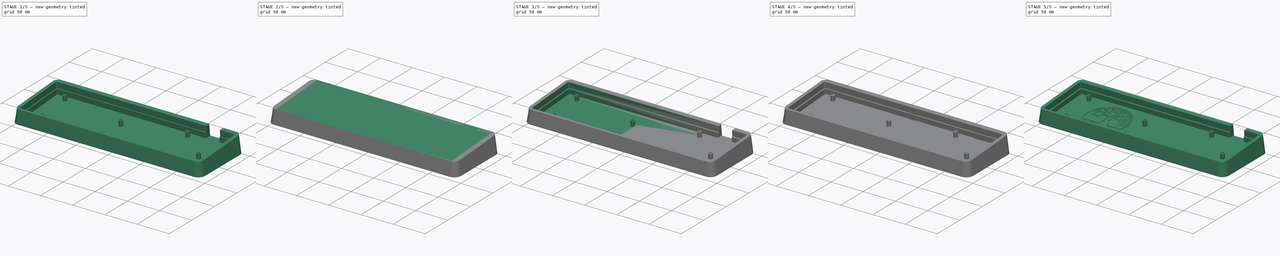
[diagram: build sequence overview — one tinted view per stage of 5, left to right]
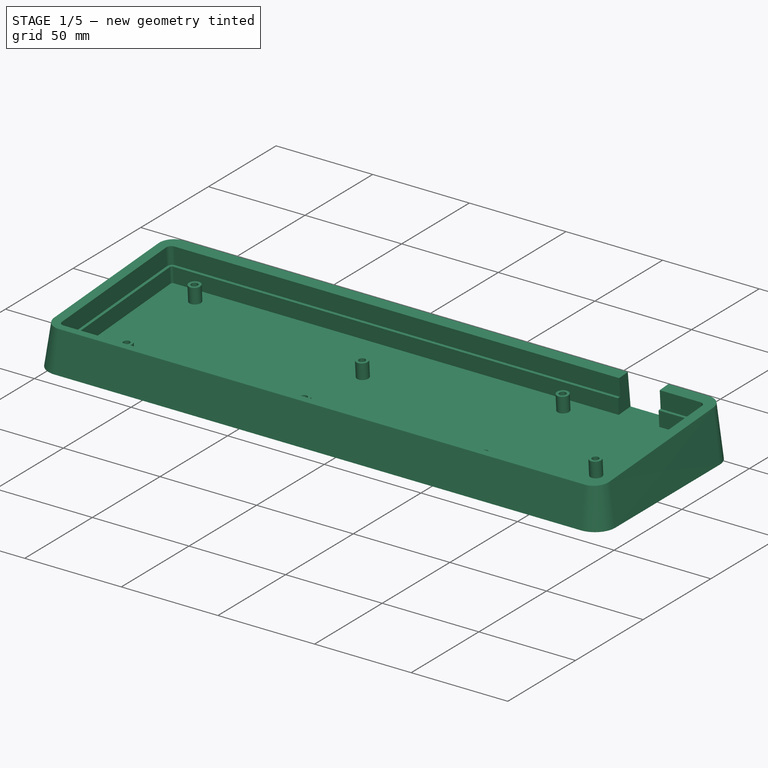
[diagram: stage 1 of 5 — iso view after this stage's code; geometry added in this stage tinted green]
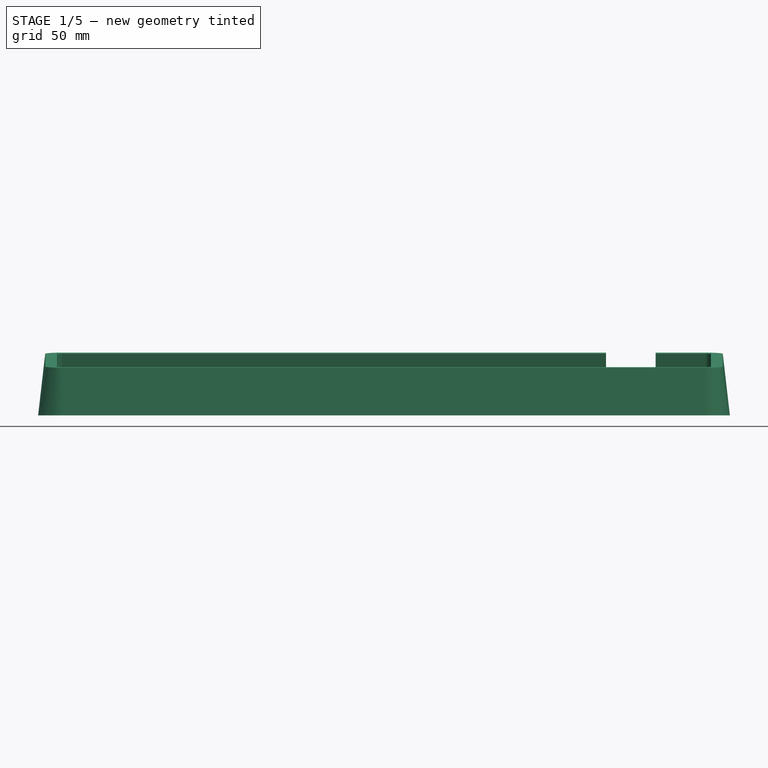
[diagram: stage 1 of 5 — front view after this stage's code; geometry added in this stage tinted green]
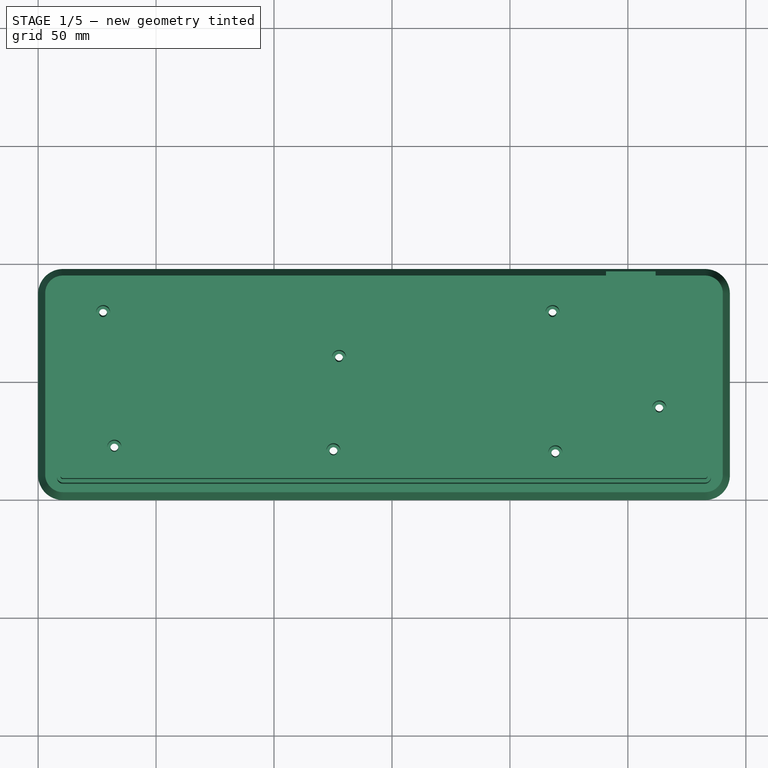
[diagram: stage 1 of 5 — top view after this stage's code; geometry added in this stage tinted green]
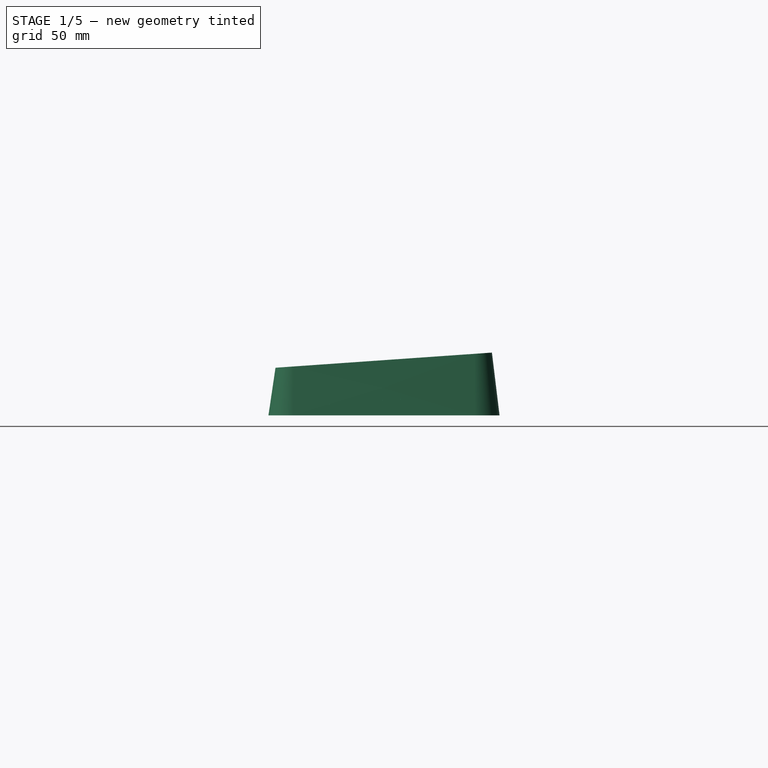
[diagram: stage 1 of 5 — right view after this stage's code; geometry added in this stage tinted green]
FCSTD DOCUMENT  (FreeCAD 0.20R)
Label: case
License: All rights reserved
LicenseURL: http://en.wikipedia.org/wiki/All_rights_reserved
objects: Sketcher::SketchObject×23, PartDesign::Pocket×11, PartDesign::Fillet×8, PartDesign::AdditiveLoft×3, PartDesign::Pad×3, PartDesign::Hole×3, PartDesign::Chamfer×3, PartDesign::Body×3
note: 88 computed .brp shape members not serialized (recipe doc carries the construction recipe); baked Part::Feature solids carry a one-line shape summary decoded from their .brp

FEATURE [PartDesign::Body] Body001  label="Left"
  Group = -> [Sketch011,Sketch009,Sketch010,AdditiveLoft001,Pocket003,Sketch012,Pad001,Sketch013,Hole001,Chamfer001,Sketch014,Pocket004,Fillet002,Fillet003,Sketch015,Pocket005,Sketch016,Pocket006,Fillet004]
  Origin = -> Origin098
  Tip = -> Fillet004
FEATURE [Sketcher::SketchObject] Sketch018
  AttachmentOffset = pos=(0,0,20) rot=(1,0,0;0.069813rad)
  FullyConstrained = false
  MapMode = 5
  Placement = pos=(0,0,20) rot=(1,0,0;0.069813rad)
  Support = -> [XY_Plane099]
  sketch-geometry (8):
    g0: LineSegment StartX=10.5 StartY=94.9625 StartZ=0 EndX=282.725 EndY=94.9625 EndZ=0
    g1: LineSegment StartX=290.225 StartY=10.5 StartZ=0 EndX=290.225 EndY=87.4625 EndZ=0
    g2: LineSegment StartX=10.5 StartY=3 StartZ=0 EndX=282.725 EndY=3 EndZ=0
    g3: LineSegment StartX=3 StartY=10.5 StartZ=0 EndX=3 EndY=87.4625 EndZ=0
    g4: ArcOfCircle CenterX=10.5 CenterY=87.4625 CenterZ=0 NormalX=0 NormalY=0 NormalZ=1 AngleXU=0 Radius=7.5 StartAngle=1.5708 EndAngle=3.14159
    g5: ArcOfCircle CenterX=282.725 CenterY=87.4625 CenterZ=0 NormalX=0 NormalY=0 NormalZ=1 AngleXU=0 Radius=7.5 StartAngle=0 EndAngle=1.5708
    g6: ArcOfCircle CenterX=282.725 CenterY=10.5 CenterZ=0 NormalX=0 NormalY=0 NormalZ=1 AngleXU=0 Radius=7.5 StartAngle=4.71239 EndAngle=6.28319
    g7: ArcOfCircle CenterX=10.5 CenterY=10.5 CenterZ=0 NormalX=0 NormalY=0 NormalZ=1 AngleXU=0 Radius=7.5 StartAngle=3.14159 EndAngle=4.71239
  constraints (8):
    c: Coincident(g3,g7)
    c: Coincident(g3,g4)
    c: Coincident(g2,g7)
    c: Coincident(g0,g4)
    c: Coincident(g2,g6)
    c: Coincident(g0,g5)
    c: Coincident(g1,g6)
    c: Coincident(g1,g5)
FEATURE [Sketcher::SketchObject] Sketch019
  FullyConstrained = false
  MapMode = 5
  Support = -> [XY_Plane099]
  sketch-geometry (8):
    g0: LineSegment StartX=10.5 StartY=97.9625 StartZ=0 EndX=282.725 EndY=97.9625 EndZ=0
    g1: ArcOfCircle CenterX=282.725 CenterY=87.4625 CenterZ=0 NormalX=0 NormalY=0 NormalZ=1 AngleXU=0 Radius=10.5 StartAngle=0 EndAngle=1.5708
    g2: LineSegment StartX=293.225 StartY=10.5 StartZ=0 EndX=293.225 EndY=87.4625 EndZ=0
    g3: ArcOfCircle CenterX=282.725 CenterY=10.5 CenterZ=0 NormalX=0 NormalY=0 NormalZ=1 AngleXU=0 Radius=10.5 StartAngle=4.71239 EndAngle=6.28319
    g4: LineSegment StartX=10.5 StartY=0 StartZ=0 EndX=282.725 EndY=0 EndZ=0
    g5: ArcOfCircle CenterX=10.5 CenterY=10.5 CenterZ=0 NormalX=0 NormalY=0 NormalZ=1 AngleXU=0 Radius=10.5 StartAngle=3.14159 EndAngle=4.71239
    g6: LineSegment StartX=0 StartY=10.5 StartZ=0 EndX=0 EndY=87.4625 EndZ=0
    g7: ArcOfCircle CenterX=10.5 CenterY=87.4625 CenterZ=0 NormalX=0 NormalY=0 NormalZ=1 AngleXU=0 Radius=10.5 StartAngle=1.5708 EndAngle=3.14159
  constraints (8):
    c: Coincident(g5,g6)
    c: Coincident(g6,g7)
    c: Coincident(g4,g5)
    c: Coincident(g0,g7)
    c: Coincident(g3,g4)
    c: Coincident(g0,g1)
    c: Coincident(g2,g3)
    c: Coincident(g1,g2)
FEATURE [PartDesign::AdditiveLoft] AdditiveLoft002
  Closed = true
  Profile = -> Sketch019
  Ruled = true
  Sections = -> [Sketch018]
FEATURE [Sketcher::SketchObject] Sketch017
  FullyConstrained = false
  MapMode = 5
  Placement = pos=(0,-1.39173,19.9027) rot=(1,0,0;0.069813rad)
  Support = -> [AdditiveLoft002]
  sketch-geometry (8):
    g0: LineSegment StartX=285.225 StartY=10.5 StartZ=0 EndX=285.225 EndY=87.4625 EndZ=0
    g1: ArcOfCircle CenterX=10.5 CenterY=87.4625 CenterZ=0 NormalX=0 NormalY=0 NormalZ=1 AngleXU=0 Radius=2.5 StartAngle=1.5708 EndAngle=3.14159
    g2: ArcOfCircle CenterX=282.725 CenterY=87.4625 CenterZ=0 NormalX=0 NormalY=0 NormalZ=1 AngleXU=0 Radius=2.5 StartAngle=0 EndAngle=1.5708
    g3: LineSegment StartX=10.5 StartY=89.9625 StartZ=0 EndX=282.725 EndY=89.9625 EndZ=0
    g4: ArcOfCircle CenterX=10.5 CenterY=10.5 CenterZ=0 NormalX=0 NormalY=0 NormalZ=1 AngleXU=0 Radius=2.5 StartAngle=3.14159 EndAngle=4.71239
    g5: ArcOfCircle CenterX=282.725 CenterY=10.5 CenterZ=0 NormalX=0 NormalY=0 NormalZ=1 AngleXU=0 Radius=2.5 StartAngle=4.71239 EndAngle=6.28319
    g6: LineSegment StartX=8 StartY=10.5 StartZ=0 EndX=8 EndY=87.4625 EndZ=0
    g7: LineSegment StartX=10.5 StartY=8 StartZ=0 EndX=282.725 EndY=8 EndZ=0
  constraints (8):
    c: Coincident(g4,g6)
    c: Coincident(g1,g6)
    c: Coincident(g4,g7)
    c: Coincident(g1,g3)
    c: Coincident(g5,g7)
    c: Coincident(g2,g3)
    c: Coincident(g0,g5)
    c: Coincident(g0,g2)
FEATURE [PartDesign::Pocket] Pocket007
  BaseFeature = -> AdditiveLoft002
  Direction = (0,0.0697565,-0.997564)
  Length = 17
  Length2 = 5
  Profile = -> Sketch017
  ReferenceAxis = -> Sketch017 [N_Axis]
  Type = 0
FEATURE [Sketcher::SketchObject] Sketch020
  FullyConstrained = false
  MapMode = 5
  Placement = pos=(0,-0.205871,2.94409) rot=(1,0,0;0.069813rad)
  Support = -> [Pocket007]
  sketch-geometry (23):
    g0: LineSegment StartX=10.5 StartY=88.4625 StartZ=0 EndX=282.725 EndY=88.4625 EndZ=0
    g1: LineSegment StartX=9.5 StartY=10.5 StartZ=0 EndX=9.5 EndY=87.4625 EndZ=0
    g2: ArcOfCircle CenterX=10.5 CenterY=10.5 CenterZ=0 NormalX=0 NormalY=0 NormalZ=1 AngleXU=0 Radius=1 StartAngle=3.14159 EndAngle=4.71239
    g3: ArcOfCircle CenterX=10.5 CenterY=87.4625 CenterZ=0 NormalX=0 NormalY=0 NormalZ=1 AngleXU=0 Radius=1 StartAngle=1.5708 EndAngle=3.14159
    g4: LineSegment StartX=283.725 StartY=10.5 StartZ=0 EndX=283.725 EndY=87.4625 EndZ=0
    g5: ArcOfCircle CenterX=282.725 CenterY=10.5 CenterZ=0 NormalX=0 NormalY=0 NormalZ=1 AngleXU=0 Radius=1 StartAngle=4.71239 EndAngle=6.28319
    g6: ArcOfCircle CenterX=282.725 CenterY=87.4625 CenterZ=0 NormalX=0 NormalY=0 NormalZ=1 AngleXU=0 Radius=1 StartAngle=0 EndAngle=1.5708
    g7: Circle CenterX=218.05 CenterY=79.9375 CenterZ=0 NormalX=0 NormalY=0 NormalZ=-1 AngleXU=0 Radius=3
    g8: Circle CenterX=219.241 CenterY=20.4063 CenterZ=0 NormalX=0 NormalY=0 NormalZ=-1 AngleXU=0 Radius=3
    g9: LineSegment StartX=10.5 StartY=9.5 StartZ=0 EndX=282.725 EndY=9.5 EndZ=0
    g10: Circle CenterX=125.181 CenterY=21.2875 CenterZ=0 NormalX=0 NormalY=0 NormalZ=-1 AngleXU=0 Radius=3
    g11: Circle CenterX=263.294 CenterY=39.4562 CenterZ=0 NormalX=0 NormalY=0 NormalZ=-1 AngleXU=0 Radius=3
    g12: Circle CenterX=27.55 CenterY=79.9375 CenterZ=0 NormalX=0 NormalY=0 NormalZ=-1 AngleXU=0 Radius=3
    g13: Circle CenterX=32.3125 CenterY=22.7875 CenterZ=0 NormalX=0 NormalY=0 NormalZ=-1 AngleXU=0 Radius=3
    g14: Circle CenterX=127.562 CenterY=60.8875 CenterZ=0 NormalX=0 NormalY=0 NormalZ=-1 AngleXU=0 Radius=3
    g15: LineSegment StartX=10.5 StartY=8 StartZ=0 EndX=282.725 EndY=8 EndZ=0
    g16: LineSegment StartX=8 StartY=10.5 StartZ=0 EndX=8 EndY=87.4625 EndZ=0
    g17: ArcOfCircle CenterX=282.725 CenterY=10.5 CenterZ=0 NormalX=0 NormalY=0 NormalZ=1 AngleXU=0 Radius=2.5 StartAngle=4.71239 EndAngle=6.28319
    g18: ArcOfCircle CenterX=10.5 CenterY=10.5 CenterZ=0 NormalX=0 NormalY=0 NormalZ=1 AngleXU=0 Radius=2.5 StartAngle=3.14159 EndAngle=4.71239
    g19: LineSegment StartX=10.5 StartY=89.9625 StartZ=0 EndX=282.725 EndY=89.9625 EndZ=0
    g20: ArcOfCircle CenterX=282.725 CenterY=87.4625 CenterZ=0 NormalX=0 NormalY=0 NormalZ=1 AngleXU=0 Radius=2.5 StartAngle=0 EndAngle=1.5708
    g21: ArcOfCircle CenterX=10.5 CenterY=87.4625 CenterZ=0 NormalX=0 NormalY=0 NormalZ=1 AngleXU=0 Radius=2.5 StartAngle=1.5708 EndAngle=3.14159
    g22: LineSegment StartX=285.225 StartY=10.5 StartZ=0 EndX=285.225 EndY=87.4625 EndZ=0
FEATURE [PartDesign::Pad] Pad002
  BaseFeature = -> Pocket007
  Direction = (0,-0.0697565,0.997564)
  Length = 8
  Length2 = 10
  Profile = -> Sketch020
  ReferenceAxis = -> Sketch020 [N_Axis]
  Type = 0
FEATURE [Sketcher::SketchObject] Sketch021
  ExternalGeometry = -> [Pad002]
  FullyConstrained = true
  MapMode = 5
  Placement = pos=(-1e-16,-0.763923,10.9246) rot=(1,0,0;0.069813rad)
  Support = -> [Pad002]
  sketch-geometry (7):
    g0: Circle CenterX=218.05 CenterY=79.9375 CenterZ=0 NormalX=0 NormalY=0 NormalZ=1 AngleXU=0 Radius=1.5
    g1: Circle CenterX=263.294 CenterY=39.4563 CenterZ=0 NormalX=0 NormalY=0 NormalZ=1 AngleXU=0 Radius=1.5
    g2: Circle CenterX=219.241 CenterY=20.4063 CenterZ=0 NormalX=0 NormalY=0 NormalZ=1 AngleXU=0 Radius=1.5
    g3: Circle CenterX=127.562 CenterY=60.8875 CenterZ=0 NormalX=0 NormalY=0 NormalZ=1 AngleXU=0 Radius=1.5
    g4: Circle CenterX=125.181 CenterY=21.2875 CenterZ=0 NormalX=0 NormalY=0 NormalZ=1 AngleXU=0 Radius=1.5
    g5: Circle CenterX=32.3125 CenterY=22.7875 CenterZ=0 NormalX=0 NormalY=0 NormalZ=1 AngleXU=0 Radius=1.5
    g6: Circle CenterX=27.55 CenterY=79.9375 CenterZ=0 NormalX=0 NormalY=0 NormalZ=1 AngleXU=0 Radius=1.5
  constraints (14):
    c: Coincident(g0,g-7)
    c: Coincident(g1,g-8)
    c: Coincident(g2,g-9)
    c: Coincident(g3,g-6)
    c: Coincident(g4,g-5)
    c: Coincident(g5,g-4)
    c: Coincident(g6,g-3)
    c: Equal(g6,g5)
    c: Equal(g5,g3)
    c: Equal(g3,g4)
    c: Equal(g4,g0)
    c: Equal(g0,g2)
    c: Equal(g2,g1)
    c: Diameter(g6) = 3
FEATURE [PartDesign::Hole] Hole002
  BaseFeature = -> Pad002
  CustomThreadClearance = 0
  Depth = 25
  DepthType = 0
  Diameter = 3.4
  DrillForDepth = false
  DrillPoint = 1
  DrillPointAngle = 118
  HoleCutCountersinkAngle = 90
  HoleCutCustomValues = false
  HoleCutDepth = 0
  HoleCutDiameter = 6.1
  HoleCutType = 0
  ModelThread = false
  Profile = -> Sketch021
  Tapered = false
  TaperedAngle = 90
  ThreadClass = 0
  ThreadDepth = 25
  ThreadDepthType = 0
  ThreadDirection = 0
  ThreadFit = 0
  ThreadSize = 9
  ThreadType = 1
  Threaded = false
  UseCustomThreadClearance = false
FEATURE [PartDesign::Chamfer] Chamfer002
  Angle = 45
  Base = -> Hole002 [Edge11,Edge10,Edge13,Edge15,Edge12,Edge9,Edge14]
  BaseFeature = -> Hole002
  ChamferType = 0
  FlipDirection = false
  Size = 4
  Size2 = 1
  SupportTransform = false
  UseAllEdges = false
FEATURE [Sketcher::SketchObject] Sketch022
  ExternalGeometry = -> [Chamfer002]
  FullyConstrained = true
  MapMode = 5
  Placement = pos=(0,-1.39173,19.9027) rot=(1,0,0;0.069813rad)
  Support = -> [Chamfer002]
  sketch-geometry (5):
    g0: GeomPoint X=261.725 Y=88.4625 Z=0
    g1: LineSegment StartX=261.725 StartY=88.4625 StartZ=0 EndX=240.725 EndY=88.4625 EndZ=0
    g2: LineSegment StartX=240.725 StartY=88.4625 StartZ=0 EndX=240.725 EndY=97.7239 EndZ=0
    g3: LineSegment StartX=240.725 StartY=97.7239 StartZ=0 EndX=261.725 EndY=97.7239 EndZ=0
    g4: LineSegment StartX=261.725 StartY=97.7239 StartZ=0 EndX=261.725 EndY=88.4625 EndZ=0
  constraints (13):
    c: PointOnObject(g0,g-4)
    c: DistanceX(g0,g-4) = 21
    c: Coincident(g1,g2)
    c: Coincident(g2,g3)
    c: Coincident(g3,g4)
    c: Coincident(g4,g1)
    c: Horizontal(g1)
    c: Horizontal(g3)
    c: Vertical(g2)
    c: Vertical(g4)
    c: Coincident(g1,g0)
    c: PointOnObject(g2,g-3)
    c: DistanceX(g3,g3) = 21
FEATURE [PartDesign::Pocket] Pocket008
  BaseFeature = -> Chamfer002
  Direction = (0,0.0697565,-0.997564)
  Length = 0
  Length2 = 5
  Profile = -> Sketch022
  ReferenceAxis = -> Sketch022 [N_Axis]
  Type = 3
  UpToFace = -> Chamfer002 [Face48]
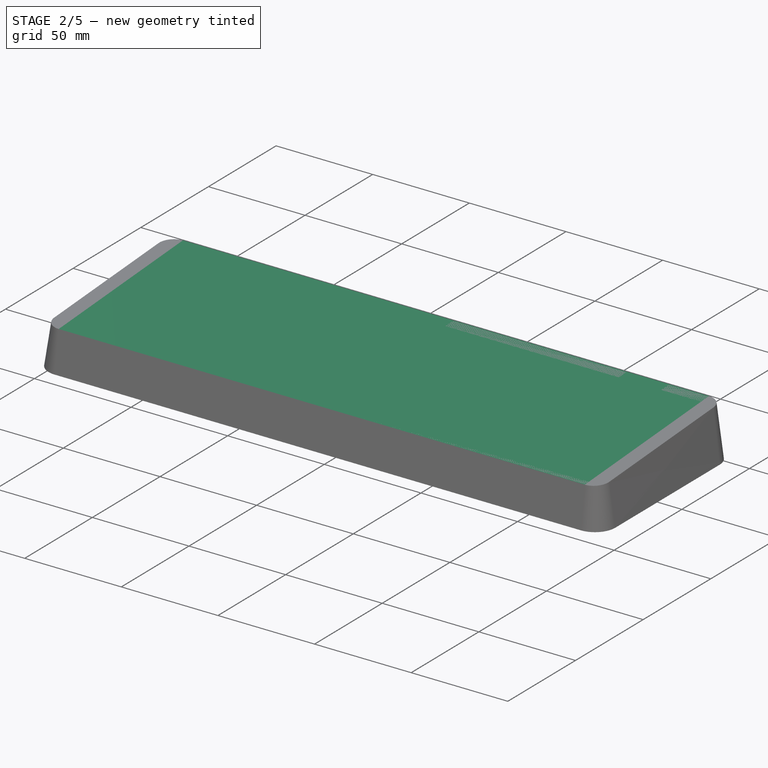
[diagram: stage 2 of 5 — iso view after this stage's code; geometry added in this stage tinted green]
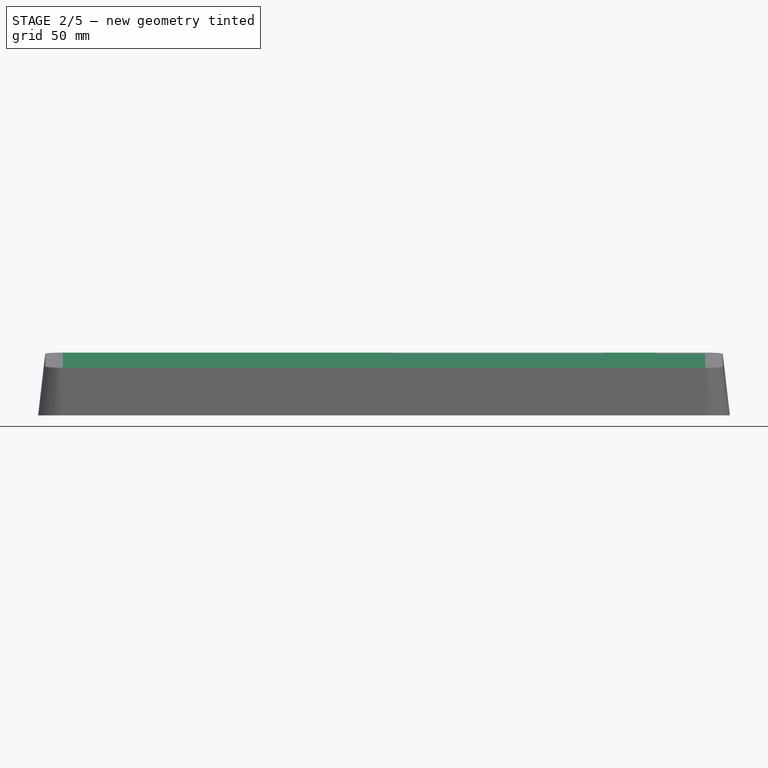
[diagram: stage 2 of 5 — front view after this stage's code; geometry added in this stage tinted green]
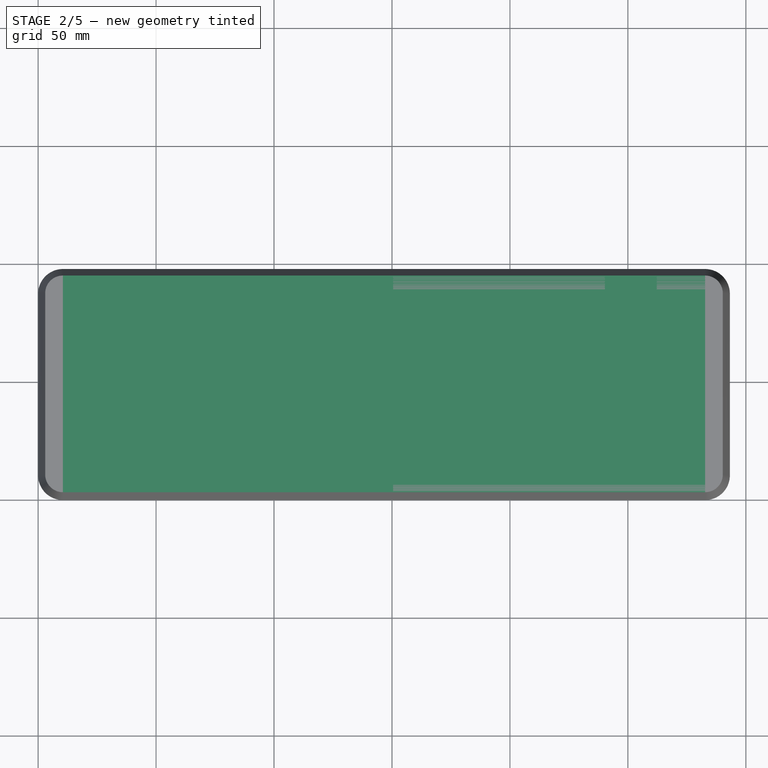
[diagram: stage 2 of 5 — top view after this stage's code; geometry added in this stage tinted green]
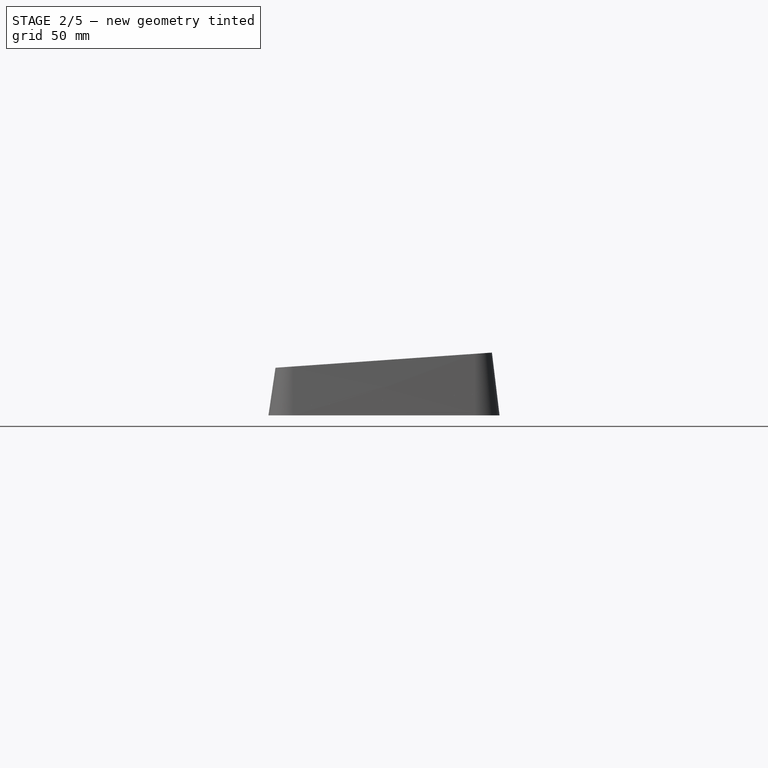
[diagram: stage 2 of 5 — right view after this stage's code; geometry added in this stage tinted green]
FEATURE [PartDesign::Body] Body
  Group = -> [Sketch002,Sketch,Sketch001,AdditiveLoft,Pocket,Sketch003,Pad,Sketch004,Hole,Chamfer,Sketch005,Pocket001,Fillet,Fillet001,Sketch008,Pocket002]
  Origin = -> Origin
  Tip = -> Pocket002
FEATURE [Sketcher::SketchObject] Sketch010
  AttachmentOffset = pos=(0,0,20) rot=(1,0,0;0.069813rad)
  FullyConstrained = false
  MapMode = 5
  Placement = pos=(0,0,20) rot=(1,0,0;0.069813rad)
  Support = -> [XY_Plane098]
  sketch-geometry (8):
    g0: LineSegment StartX=10.5 StartY=94.9625 StartZ=0 EndX=282.725 EndY=94.9625 EndZ=0
    g1: LineSegment StartX=290.225 StartY=10.5 StartZ=0 EndX=290.225 EndY=87.4625 EndZ=0
    g2: LineSegment StartX=10.5 StartY=3 StartZ=0 EndX=282.725 EndY=3 EndZ=0
    g3: LineSegment StartX=3 StartY=10.5 StartZ=0 EndX=3 EndY=87.4625 EndZ=0
    g4: ArcOfCircle CenterX=10.5 CenterY=87.4625 CenterZ=0 NormalX=0 NormalY=0 NormalZ=1 AngleXU=0 Radius=7.5 StartAngle=1.5708 EndAngle=3.14159
    g5: ArcOfCircle CenterX=282.725 CenterY=87.4625 CenterZ=0 NormalX=0 NormalY=0 NormalZ=1 AngleXU=0 Radius=7.5 StartAngle=0 EndAngle=1.5708
    g6: ArcOfCircle CenterX=282.725 CenterY=10.5 CenterZ=0 NormalX=0 NormalY=0 NormalZ=1 AngleXU=0 Radius=7.5 StartAngle=4.71239 EndAngle=6.28319
    g7: ArcOfCircle CenterX=10.5 CenterY=10.5 CenterZ=0 NormalX=0 NormalY=0 NormalZ=1 AngleXU=0 Radius=7.5 StartAngle=3.14159 EndAngle=4.71239
  constraints (8):
    c: Coincident(g3,g7)
    c: Coincident(g3,g4)
    c: Coincident(g2,g7)
    c: Coincident(g0,g4)
    c: Coincident(g2,g6)
    c: Coincident(g0,g5)
    c: Coincident(g1,g6)
    c: Coincident(g1,g5)
FEATURE [Sketcher::SketchObject] Sketch011
  FullyConstrained = false
  MapMode = 5
  Support = -> [XY_Plane098]
  sketch-geometry (8):
    g0: LineSegment StartX=10.5 StartY=97.9625 StartZ=0 EndX=282.725 EndY=97.9625 EndZ=0
    g1: ArcOfCircle CenterX=282.725 CenterY=87.4625 CenterZ=0 NormalX=0 NormalY=0 NormalZ=1 AngleXU=0 Radius=10.5 StartAngle=0 EndAngle=1.5708
    g2: LineSegment StartX=293.225 StartY=10.5 StartZ=0 EndX=293.225 EndY=87.4625 EndZ=0
    g3: ArcOfCircle CenterX=282.725 CenterY=10.5 CenterZ=0 NormalX=0 NormalY=0 NormalZ=1 AngleXU=0 Radius=10.5 StartAngle=4.71239 EndAngle=6.28319
    g4: LineSegment StartX=10.5 StartY=0 StartZ=0 EndX=282.725 EndY=0 EndZ=0
    g5: ArcOfCircle CenterX=10.5 CenterY=10.5 CenterZ=0 NormalX=0 NormalY=0 NormalZ=1 AngleXU=0 Radius=10.5 StartAngle=3.14159 EndAngle=4.71239
    g6: LineSegment StartX=0 StartY=10.5 StartZ=0 EndX=0 EndY=87.4625 EndZ=0
    g7: ArcOfCircle CenterX=10.5 CenterY=87.4625 CenterZ=0 NormalX=0 NormalY=0 NormalZ=1 AngleXU=0 Radius=10.5 StartAngle=1.5708 EndAngle=3.14159
  constraints (8):
    c: Coincident(g5,g6)
    c: Coincident(g6,g7)
    c: Coincident(g4,g5)
    c: Coincident(g0,g7)
    c: Coincident(g3,g4)
    c: Coincident(g0,g1)
    c: Coincident(g2,g3)
    c: Coincident(g1,g2)
FEATURE [PartDesign::AdditiveLoft] AdditiveLoft001
  Closed = true
  Profile = -> Sketch011
  Ruled = true
  Sections = -> [Sketch010]
FEATURE [PartDesign::Fillet] Fillet005
  Base = -> Pocket008 [Face39,Edge66,Edge20,Edge69,Edge22,Edge62,Edge52,Face18,Edge64,Edge71,Edge21,Edge84,Edge132,Edge131,Edge130,Edge129,Edge133,Edge134]
  BaseFeature = -> Pocket008
  Radius = 0.5
  SupportTransform = false
  UseAllEdges = false
FEATURE [PartDesign::Fillet] Fillet006
  Base = -> Fillet005 [Edge147,Edge21]
  BaseFeature = -> Fillet005
  Radius = 1
  SupportTransform = false
  UseAllEdges = false
FEATURE [Sketcher::SketchObject] Sketch023
  AttachmentOffset = pos=(0,3,0) rot=(0,0,1;0rad)
  FullyConstrained = false
  MapMode = 5
  Placement = pos=(0,2.78682,3.15336) rot=(1,0,0;0.069813rad)
  Support = -> [Fillet006]
  sketch-geometry (45):
    g0: BSplineCurve PolesCount=157 KnotsCount=53 Degree=3 IsPeriodic=0
    g1: BSplineCurve PolesCount=142 KnotsCount=48 Degree=3 IsPeriodic=0
    g2: BSplineCurve PolesCount=145 KnotsCount=49 Degree=3 IsPeriodic=0
    g3: BSplineCurve PolesCount=148 KnotsCount=50 Degree=3 IsPeriodic=0
    g4: BSplineCurve PolesCount=193 KnotsCount=65 Degree=3 IsPeriodic=0
    g5: BSplineCurve PolesCount=157 KnotsCount=53 Degree=3 IsPeriodic=0
    g6: BSplineCurve PolesCount=13 KnotsCount=5 Degree=3 IsPeriodic=0
    g7: BSplineCurve PolesCount=169 KnotsCount=57 Degree=3 IsPeriodic=0
    g8: BSplineCurve PolesCount=61 KnotsCount=21 Degree=3 IsPeriodic=0
    g9: BSplineCurve PolesCount=22 KnotsCount=8 Degree=3 IsPeriodic=0
    g10: BSplineCurve PolesCount=124 KnotsCount=42 Degree=3 IsPeriodic=0
    g11: BSplineCurve PolesCount=52 KnotsCount=18 Degree=3 IsPeriodic=0
    g12: BSplineCurve PolesCount=235 KnotsCount=79 Degree=3 IsPeriodic=0
    g13: BSplineCurve PolesCount=64 KnotsCount=22 Degree=3 IsPeriodic=0
    g14: BSplineCurve PolesCount=25 KnotsCount=9 Degree=3 IsPeriodic=0
    g15: BSplineCurve PolesCount=40 KnotsCount=14 Degree=3 IsPeriodic=0
    g16: BSplineCurve PolesCount=151 KnotsCount=51 Degree=3 IsPeriodic=0
    g17: BSplineCurve PolesCount=91 KnotsCount=31 Degree=3 IsPeriodic=0
    g18: BSplineCurve PolesCount=76 KnotsCount=26 Degree=3 IsPeriodic=0
    g19: BSplineCurve PolesCount=28 KnotsCount=10 Degree=3 IsPeriodic=0
    g20: BSplineCurve PolesCount=70 KnotsCount=24 Degree=3 IsPeriodic=0
    g21: BSplineCurve PolesCount=19 KnotsCount=7 Degree=3 IsPeriodic=0
    g22: BSplineCurve PolesCount=25 KnotsCount=9 Degree=3 IsPeriodic=0
    g23: BSplineCurve PolesCount=55 KnotsCount=19 Degree=3 IsPeriodic=0
    g24: BSplineCurve PolesCount=25 KnotsCount=9 Degree=3 IsPeriodic=0
    g25: BSplineCurve PolesCount=10 KnotsCount=4 Degree=3 IsPeriodic=0
    g26: BSplineCurve PolesCount=121 KnotsCount=41 Degree=3 IsPeriodic=0
    g27: BSplineCurve PolesCount=34 KnotsCount=12 Degree=3 IsPeriodic=0
    g28: BSplineCurve PolesCount=37 KnotsCount=13 Degree=3 IsPeriodic=0
    g29: BSplineCurve PolesCount=43 KnotsCount=15 Degree=3 IsPeriodic=0
    g30: BSplineCurve PolesCount=46 KnotsCount=16 Degree=3 IsPeriodic=0
    g31: BSplineCurve PolesCount=64 KnotsCount=22 Degree=3 IsPeriodic=0
    g32: BSplineCurve PolesCount=25 KnotsCount=9 Degree=3 IsPeriodic=0
    g33: BSplineCurve PolesCount=61 KnotsCount=21 Degree=3 IsPeriodic=0
    g34: BSplineCurve PolesCount=28 KnotsCount=10 Degree=3 IsPeriodic=0
    g35: BSplineCurve PolesCount=52 KnotsCount=18 Degree=3 IsPeriodic=0
    g36: BSplineCurve PolesCount=10 KnotsCount=4 Degree=3 IsPeriodic=0
    g37: BSplineCurve PolesCount=37 KnotsCount=13 Degree=3 IsPeriodic=0
    g38: BSplineCurve PolesCount=31 KnotsCount=11 Degree=3 IsPeriodic=0
    g39: BSplineCurve PolesCount=40 KnotsCount=14 Degree=3 IsPeriodic=0
    g40: BSplineCurve PolesCount=28 KnotsCount=10 Degree=3 IsPeriodic=0
    g41: BSplineCurve PolesCount=10 KnotsCount=4 Degree=3 IsPeriodic=0
    g42: BSplineCurve PolesCount=7 KnotsCount=3 Degree=3 IsPeriodic=0
    g43: BSplineCurve PolesCount=13 KnotsCount=5 Degree=3 IsPeriodic=0
    g44: BSplineCurve PolesCount=7 KnotsCount=3 Degree=3 IsPeriodic=0
FEATURE [PartDesign::Pocket] Pocket009
  BaseFeature = -> Fillet006
  Direction = (0,0.0697565,-0.997564)
  Length = 1
  Length2 = 5
  Profile = -> Sketch023
  ReferenceAxis = -> Sketch023 [N_Axis]
  Type = 0
FEATURE [Sketcher::SketchObject] Sketch024
  FullyConstrained = true
  MapMode = 5
  Support = -> [XY_Plane099]
  sketch-geometry (4):
    g0: LineSegment StartX=0 StartY=100 StartZ=0 EndX=150 EndY=100 EndZ=0
    g1: LineSegment StartX=150 StartY=100 StartZ=0 EndX=150 EndY=0 EndZ=0
    g2: LineSegment StartX=150 StartY=0 StartZ=0 EndX=0 EndY=0 EndZ=0
    g3: LineSegment StartX=0 StartY=0 StartZ=0 EndX=0 EndY=100 EndZ=0
  constraints (11):
    c: Coincident(g0,g1)
    c: Coincident(g1,g2)
    c: Coincident(g2,g3)
    c: Coincident(g3,g0)
    c: Horizontal(g0)
    c: Horizontal(g2)
    c: Vertical(g1)
    c: Vertical(g3)
    c: DistanceY(g3,g3) = 100
    c: DistanceX(g-1,g1) = 150
    c: Coincident(g2,g-1)
FEATURE [PartDesign::Pocket] Pocket010
  BaseFeature = -> Pocket009
  Direction = (0,0,-1)
  Length = 5
  Length2 = 5
  Profile = -> Sketch024
  ReferenceAxis = -> Sketch024 [N_Axis]
  Reversed = true
  Type = 1
FEATURE [PartDesign::Fillet] Fillet007
  Base = -> Pocket010 [Face2]
  BaseFeature = -> Pocket010
  Radius = 0.5
  SupportTransform = false
  UseAllEdges = false
FEATURE [PartDesign::Body] Body002  label="Right"
  Group = -> [Sketch019,Sketch017,Sketch018,AdditiveLoft002,Pocket007,Sketch020,Pad002,Sketch021,Hole002,Chamfer002,Sketch022,Pocket008,Fillet005,Fillet006,Sketch023,Pocket009,Sketch024,Pocket010,Fillet007]
  Origin = -> Origin099
  Tip = -> Fillet007
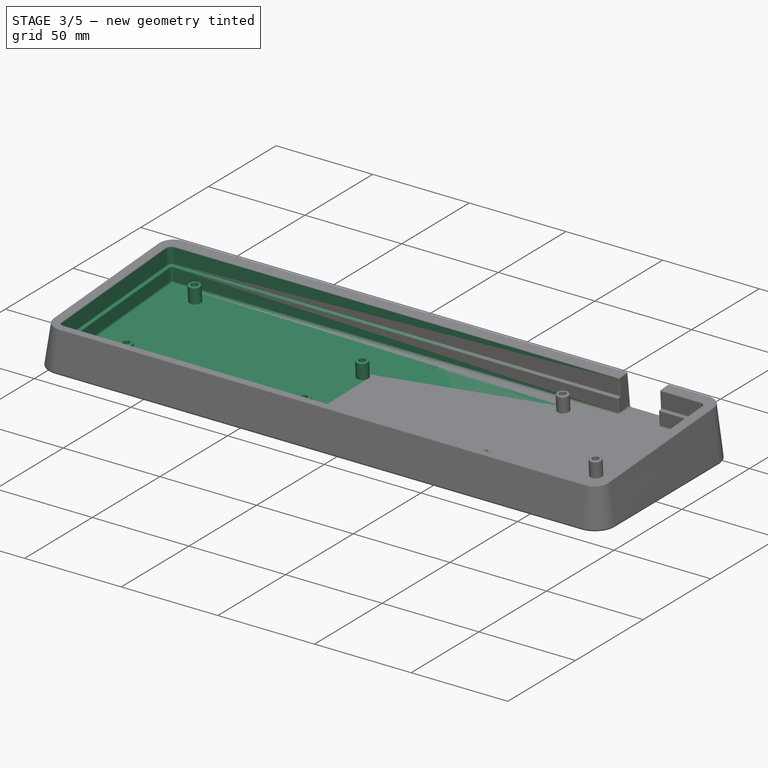
[diagram: stage 3 of 5 — iso view after this stage's code; geometry added in this stage tinted green]
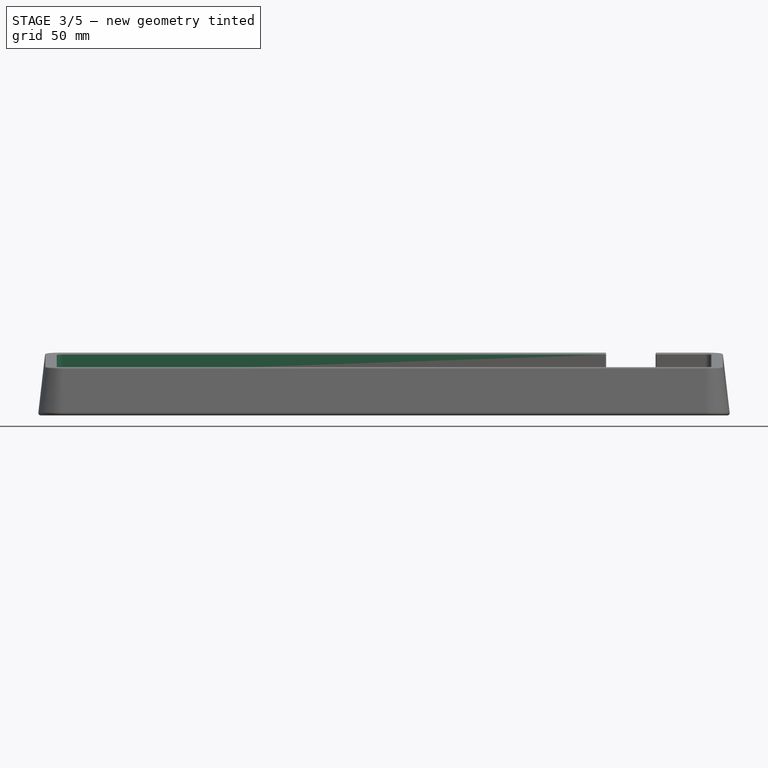
[diagram: stage 3 of 5 — front view after this stage's code; geometry added in this stage tinted green]
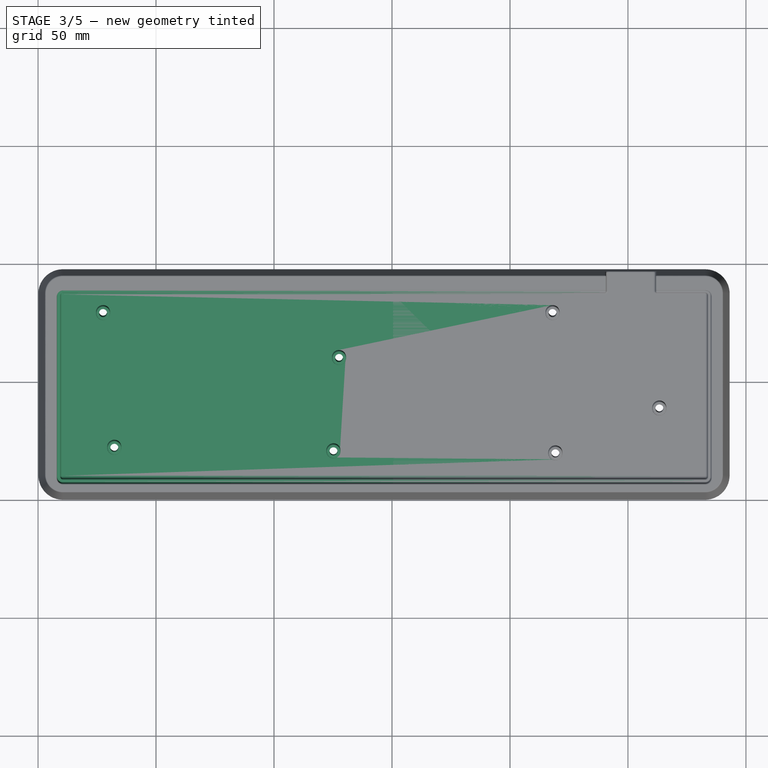
[diagram: stage 3 of 5 — top view after this stage's code; geometry added in this stage tinted green]
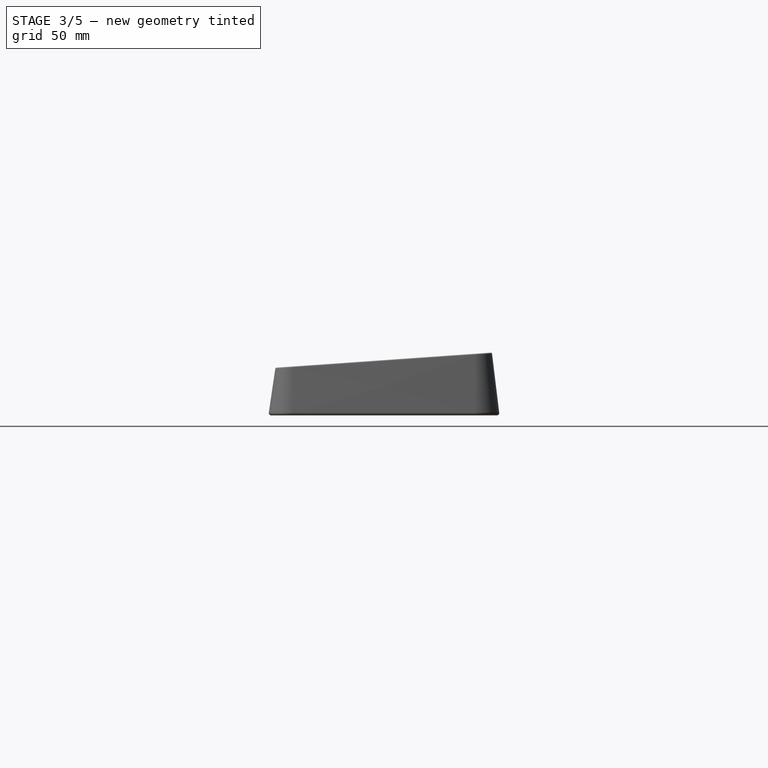
[diagram: stage 3 of 5 — right view after this stage's code; geometry added in this stage tinted green]
FEATURE [Sketcher::SketchObject] Sketch009
  FullyConstrained = false
  MapMode = 5
  Placement = pos=(0,-1.39173,19.9027) rot=(1,0,0;0.069813rad)
  Support = -> [AdditiveLoft001]
  sketch-geometry (8):
    g0: LineSegment StartX=285.225 StartY=10.5 StartZ=0 EndX=285.225 EndY=87.4625 EndZ=0
    g1: ArcOfCircle CenterX=10.5 CenterY=87.4625 CenterZ=0 NormalX=0 NormalY=0 NormalZ=1 AngleXU=0 Radius=2.5 StartAngle=1.5708 EndAngle=3.14159
    g2: ArcOfCircle CenterX=282.725 CenterY=87.4625 CenterZ=0 NormalX=0 NormalY=0 NormalZ=1 AngleXU=0 Radius=2.5 StartAngle=0 EndAngle=1.5708
    g3: LineSegment StartX=10.5 StartY=89.9625 StartZ=0 EndX=282.725 EndY=89.9625 EndZ=0
    g4: ArcOfCircle CenterX=10.5 CenterY=10.5 CenterZ=0 NormalX=0 NormalY=0 NormalZ=1 AngleXU=0 Radius=2.5 StartAngle=3.14159 EndAngle=4.71239
    g5: ArcOfCircle CenterX=282.725 CenterY=10.5 CenterZ=0 NormalX=0 NormalY=0 NormalZ=1 AngleXU=0 Radius=2.5 StartAngle=4.71239 EndAngle=6.28319
    g6: LineSegment StartX=8 StartY=10.5 StartZ=0 EndX=8 EndY=87.4625 EndZ=0
    g7: LineSegment StartX=10.5 StartY=8 StartZ=0 EndX=282.725 EndY=8 EndZ=0
  constraints (8):
    c: Coincident(g4,g6)
    c: Coincident(g1,g6)
    c: Coincident(g4,g7)
    c: Coincident(g1,g3)
    c: Coincident(g5,g7)
    c: Coincident(g2,g3)
    c: Coincident(g0,g5)
    c: Coincident(g0,g2)
FEATURE [PartDesign::Pocket] Pocket003
  BaseFeature = -> AdditiveLoft001
  Direction = (0,0.0697565,-0.997564)
  Length = 17
  Length2 = 5
  Profile = -> Sketch009
  ReferenceAxis = -> Sketch009 [N_Axis]
  Type = 0
FEATURE [Sketcher::SketchObject] Sketch012
  FullyConstrained = false
  MapMode = 5
  Placement = pos=(0,-0.205871,2.94409) rot=(1,0,0;0.069813rad)
  Support = -> [Pocket003]
  sketch-geometry (23):
    g0: LineSegment StartX=10.5 StartY=88.4625 StartZ=0 EndX=282.725 EndY=88.4625 EndZ=0
    g1: LineSegment StartX=9.5 StartY=10.5 StartZ=0 EndX=9.5 EndY=87.4625 EndZ=0
    g2: ArcOfCircle CenterX=10.5 CenterY=10.5 CenterZ=0 NormalX=0 NormalY=0 NormalZ=1 AngleXU=0 Radius=1 StartAngle=3.14159 EndAngle=4.71239
    g3: ArcOfCircle CenterX=10.5 CenterY=87.4625 CenterZ=0 NormalX=0 NormalY=0 NormalZ=1 AngleXU=0 Radius=1 StartAngle=1.5708 EndAngle=3.14159
    g4: LineSegment StartX=283.725 StartY=10.5 StartZ=0 EndX=283.725 EndY=87.4625 EndZ=0
    g5: ArcOfCircle CenterX=282.725 CenterY=10.5 CenterZ=0 NormalX=0 NormalY=0 NormalZ=1 AngleXU=0 Radius=1 StartAngle=4.71239 EndAngle=6.28319
    g6: ArcOfCircle CenterX=282.725 CenterY=87.4625 CenterZ=0 NormalX=0 NormalY=0 NormalZ=1 AngleXU=0 Radius=1 StartAngle=0 EndAngle=1.5708
    g7: Circle CenterX=218.05 CenterY=79.9375 CenterZ=0 NormalX=0 NormalY=0 NormalZ=-1 AngleXU=0 Radius=3
    g8: Circle CenterX=219.241 CenterY=20.4063 CenterZ=0 NormalX=0 NormalY=0 NormalZ=-1 AngleXU=0 Radius=3
    g9: LineSegment StartX=10.5 StartY=9.5 StartZ=0 EndX=282.725 EndY=9.5 EndZ=0
    g10: Circle CenterX=125.181 CenterY=21.2875 CenterZ=0 NormalX=0 NormalY=0 NormalZ=-1 AngleXU=0 Radius=3
    g11: Circle CenterX=263.294 CenterY=39.4562 CenterZ=0 NormalX=0 NormalY=0 NormalZ=-1 AngleXU=0 Radius=3
    g12: Circle CenterX=27.55 CenterY=79.9375 CenterZ=0 NormalX=0 NormalY=0 NormalZ=-1 AngleXU=0 Radius=3
    g13: Circle CenterX=32.3125 CenterY=22.7875 CenterZ=0 NormalX=0 NormalY=0 NormalZ=-1 AngleXU=0 Radius=3
    g14: Circle CenterX=127.562 CenterY=60.8875 CenterZ=0 NormalX=0 NormalY=0 NormalZ=-1 AngleXU=0 Radius=3
    g15: LineSegment StartX=10.5 StartY=8 StartZ=0 EndX=282.725 EndY=8 EndZ=0
    g16: LineSegment StartX=8 StartY=10.5 StartZ=0 EndX=8 EndY=87.4625 EndZ=0
    g17: ArcOfCircle CenterX=282.725 CenterY=10.5 CenterZ=0 NormalX=0 NormalY=0 NormalZ=1 AngleXU=0 Radius=2.5 StartAngle=4.71239 EndAngle=6.28319
    g18: ArcOfCircle CenterX=10.5 CenterY=10.5 CenterZ=0 NormalX=0 NormalY=0 NormalZ=1 AngleXU=0 Radius=2.5 StartAngle=3.14159 EndAngle=4.71239
    g19: LineSegment StartX=10.5 StartY=89.9625 StartZ=0 EndX=282.725 EndY=89.9625 EndZ=0
    g20: ArcOfCircle CenterX=282.725 CenterY=87.4625 CenterZ=0 NormalX=0 NormalY=0 NormalZ=1 AngleXU=0 Radius=2.5 StartAngle=0 EndAngle=1.5708
    g21: ArcOfCircle CenterX=10.5 CenterY=87.4625 CenterZ=0 NormalX=0 NormalY=0 NormalZ=1 AngleXU=0 Radius=2.5 StartAngle=1.5708 EndAngle=3.14159
    g22: LineSegment StartX=285.225 StartY=10.5 StartZ=0 EndX=285.225 EndY=87.4625 EndZ=0
FEATURE [PartDesign::Pad] Pad001
  BaseFeature = -> Pocket003
  Direction = (0,-0.0697565,0.997564)
  Length = 8
  Length2 = 10
  Profile = -> Sketch012
  ReferenceAxis = -> Sketch012 [N_Axis]
  Type = 0
FEATURE [Sketcher::SketchObject] Sketch013
  ExternalGeometry = -> [Pad001]
  FullyConstrained = true
  MapMode = 5
  Placement = pos=(-1e-16,-0.763923,10.9246) rot=(1,0,0;0.069813rad)
  Support = -> [Pad001]
  sketch-geometry (7):
    g0: Circle CenterX=218.05 CenterY=79.9375 CenterZ=0 NormalX=0 NormalY=0 NormalZ=1 AngleXU=0 Radius=1.5
    g1: Circle CenterX=263.294 CenterY=39.4563 CenterZ=0 NormalX=0 NormalY=0 NormalZ=1 AngleXU=0 Radius=1.5
    g2: Circle CenterX=219.241 CenterY=20.4063 CenterZ=0 NormalX=0 NormalY=0 NormalZ=1 AngleXU=0 Radius=1.5
    g3: Circle CenterX=127.562 CenterY=60.8875 CenterZ=0 NormalX=0 NormalY=0 NormalZ=1 AngleXU=0 Radius=1.5
    g4: Circle CenterX=125.181 CenterY=21.2875 CenterZ=0 NormalX=0 NormalY=0 NormalZ=1 AngleXU=0 Radius=1.5
    g5: Circle CenterX=32.3125 CenterY=22.7875 CenterZ=0 NormalX=0 NormalY=0 NormalZ=1 AngleXU=0 Radius=1.5
    g6: Circle CenterX=27.55 CenterY=79.9375 CenterZ=0 NormalX=0 NormalY=0 NormalZ=1 AngleXU=0 Radius=1.5
  constraints (14):
    c: Coincident(g0,g-7)
    c: Coincident(g1,g-8)
    c: Coincident(g2,g-9)
    c: Coincident(g3,g-6)
    c: Coincident(g4,g-5)
    c: Coincident(g5,g-4)
    c: Coincident(g6,g-3)
    c: Equal(g6,g5)
    c: Equal(g5,g3)
    c: Equal(g3,g4)
    c: Equal(g4,g0)
    c: Equal(g0,g2)
    c: Equal(g2,g1)
    c: Diameter(g6) = 3
FEATURE [PartDesign::Hole] Hole001
  BaseFeature = -> Pad001
  CustomThreadClearance = 0
  Depth = 25
  DepthType = 0
  Diameter = 3.4
  DrillForDepth = false
  DrillPoint = 1
  DrillPointAngle = 118
  HoleCutCountersinkAngle = 90
  HoleCutCustomValues = false
  HoleCutDepth = 0
  HoleCutDiameter = 6.1
  HoleCutType = 0
  ModelThread = false
  Profile = -> Sketch013
  Tapered = false
  TaperedAngle = 90
  ThreadClass = 0
  ThreadDepth = 25
  ThreadDepthType = 0
  ThreadDirection = 0
  ThreadFit = 0
  ThreadSize = 9
  ThreadType = 1
  Threaded = false
  UseCustomThreadClearance = false
FEATURE [PartDesign::Chamfer] Chamfer001
  Angle = 45
  Base = -> Hole001 [Edge11,Edge10,Edge13,Edge15,Edge12,Edge9,Edge14]
  BaseFeature = -> Hole001
  ChamferType = 0
  FlipDirection = false
  Size = 4
  Size2 = 1
  SupportTransform = false
  UseAllEdges = false
FEATURE [Sketcher::SketchObject] Sketch014
  ExternalGeometry = -> [Chamfer001]
  FullyConstrained = true
  MapMode = 5
  Placement = pos=(0,-1.39173,19.9027) rot=(1,0,0;0.069813rad)
  Support = -> [Chamfer001]
  sketch-geometry (5):
    g0: GeomPoint X=261.725 Y=88.4625 Z=0
    g1: LineSegment StartX=261.725 StartY=88.4625 StartZ=0 EndX=240.725 EndY=88.4625 EndZ=0
    g2: LineSegment StartX=240.725 StartY=88.4625 StartZ=0 EndX=240.725 EndY=97.7239 EndZ=0
    g3: LineSegment StartX=240.725 StartY=97.7239 StartZ=0 EndX=261.725 EndY=97.7239 EndZ=0
    g4: LineSegment StartX=261.725 StartY=97.7239 StartZ=0 EndX=261.725 EndY=88.4625 EndZ=0
  constraints (13):
    c: PointOnObject(g0,g-4)
    c: DistanceX(g0,g-4) = 21
    c: Coincident(g1,g2)
    c: Coincident(g2,g3)
    c: Coincident(g3,g4)
    c: Coincident(g4,g1)
    c: Horizontal(g1)
    c: Horizontal(g3)
    c: Vertical(g2)
    c: Vertical(g4)
    c: Coincident(g1,g0)
    c: PointOnObject(g2,g-3)
    c: DistanceX(g3,g3) = 21
FEATURE [PartDesign::Pocket] Pocket004
  BaseFeature = -> Chamfer001
  Direction = (0,0.0697565,-0.997564)
  Length = 0
  Length2 = 5
  Profile = -> Sketch014
  ReferenceAxis = -> Sketch014 [N_Axis]
  Type = 3
  UpToFace = -> Chamfer001 [Face48]
FEATURE [PartDesign::Fillet] Fillet002
  Base = -> Pocket004 [Face39,Edge66,Edge20,Edge69,Edge22,Edge62,Edge52,Face18,Edge64,Edge71,Edge21,Edge84,Edge132,Edge131,Edge130,Edge129,Edge133,Edge134]
  BaseFeature = -> Pocket004
  Radius = 0.5
  SupportTransform = false
  UseAllEdges = false
FEATURE [PartDesign::Fillet] Fillet003
  Base = -> Fillet002 [Edge147,Edge21]
  BaseFeature = -> Fillet002
  Radius = 1
  SupportTransform = false
  UseAllEdges = false
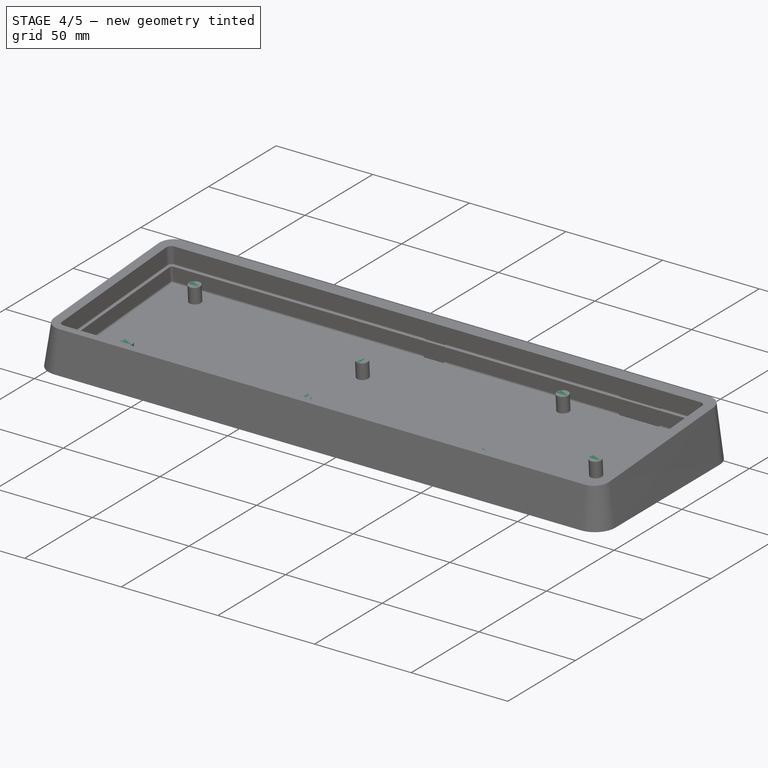
[diagram: stage 4 of 5 — iso view after this stage's code; geometry added in this stage tinted green]
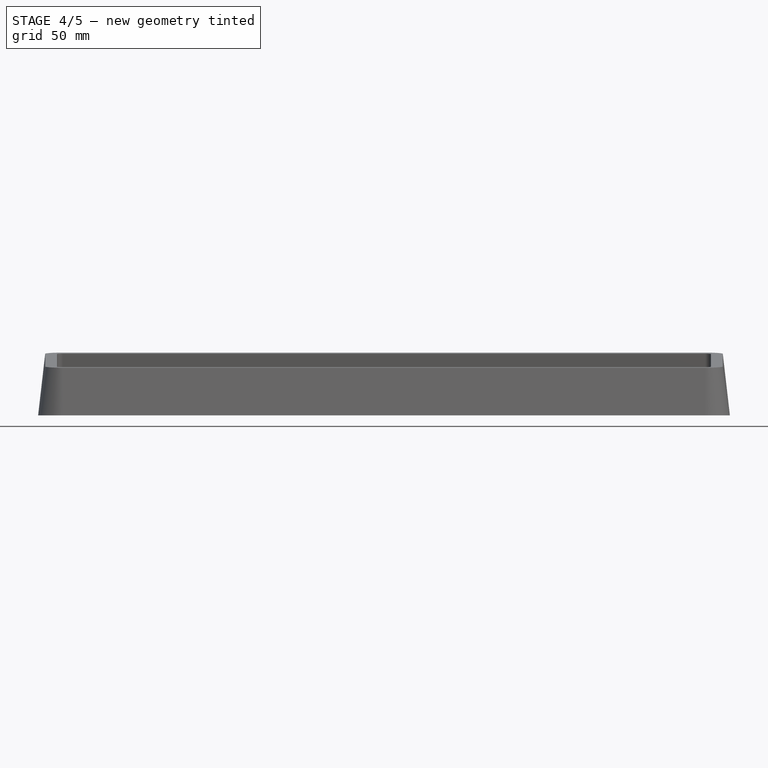
[diagram: stage 4 of 5 — front view after this stage's code; geometry added in this stage tinted green]
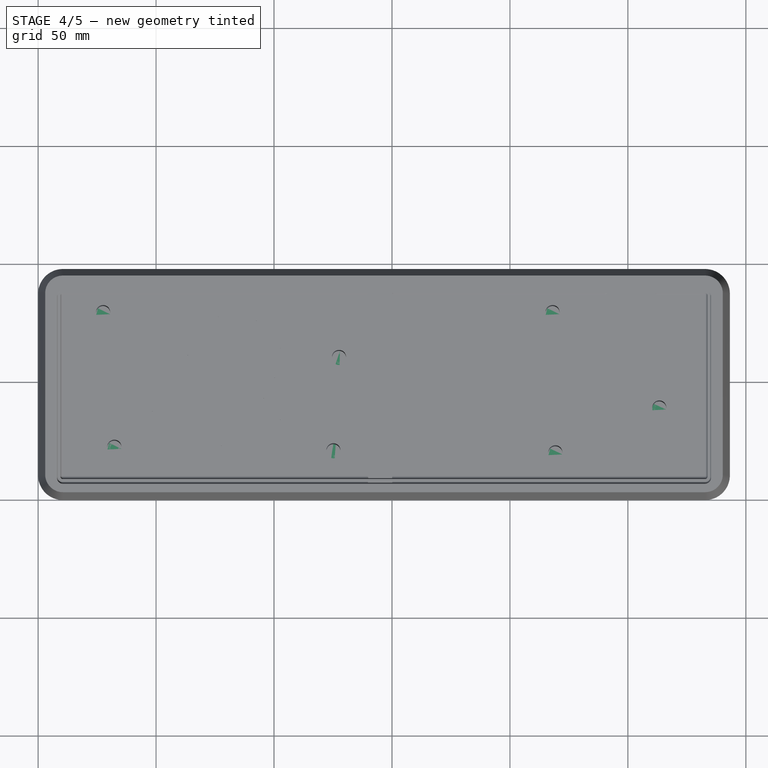
[diagram: stage 4 of 5 — top view after this stage's code; geometry added in this stage tinted green]
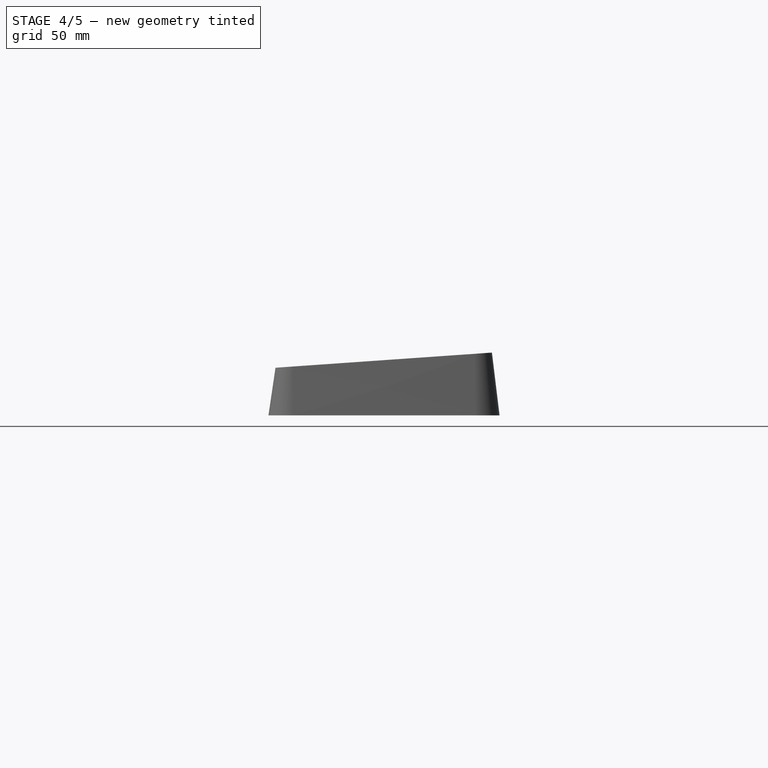
[diagram: stage 4 of 5 — right view after this stage's code; geometry added in this stage tinted green]
FEATURE [Sketcher::SketchObject] Sketch001
  AttachmentOffset = pos=(0,0,20) rot=(1,0,0;0.069813rad)
  FullyConstrained = false
  MapMode = 5
  Placement = pos=(0,0,20) rot=(1,0,0;0.069813rad)
  Support = -> [XY_Plane]
  sketch-geometry (8):
    g0: LineSegment StartX=10.5 StartY=94.9625 StartZ=0 EndX=282.725 EndY=94.9625 EndZ=0
    g1: LineSegment StartX=290.225 StartY=10.5 StartZ=0 EndX=290.225 EndY=87.4625 EndZ=0
    g2: LineSegment StartX=10.5 StartY=3 StartZ=0 EndX=282.725 EndY=3 EndZ=0
    g3: LineSegment StartX=3 StartY=10.5 StartZ=0 EndX=3 EndY=87.4625 EndZ=0
    g4: ArcOfCircle CenterX=10.5 CenterY=87.4625 CenterZ=0 NormalX=0 NormalY=0 NormalZ=1 AngleXU=0 Radius=7.5 StartAngle=1.5708 EndAngle=3.14159
    g5: ArcOfCircle CenterX=282.725 CenterY=87.4625 CenterZ=0 NormalX=0 NormalY=0 NormalZ=1 AngleXU=0 Radius=7.5 StartAngle=0 EndAngle=1.5708
    g6: ArcOfCircle CenterX=282.725 CenterY=10.5 CenterZ=0 NormalX=0 NormalY=0 NormalZ=1 AngleXU=0 Radius=7.5 StartAngle=4.71239 EndAngle=6.28319
    g7: ArcOfCircle CenterX=10.5 CenterY=10.5 CenterZ=0 NormalX=0 NormalY=0 NormalZ=1 AngleXU=0 Radius=7.5 StartAngle=3.14159 EndAngle=4.71239
  constraints (8):
    c: Coincident(g3,g7)
    c: Coincident(g3,g4)
    c: Coincident(g2,g7)
    c: Coincident(g0,g4)
    c: Coincident(g2,g6)
    c: Coincident(g0,g5)
    c: Coincident(g1,g6)
    c: Coincident(g1,g5)
FEATURE [Sketcher::SketchObject] Sketch002
  FullyConstrained = false
  MapMode = 5
  Support = -> [XY_Plane]
  sketch-geometry (8):
    g0: LineSegment StartX=10.5 StartY=97.9625 StartZ=0 EndX=282.725 EndY=97.9625 EndZ=0
    g1: ArcOfCircle CenterX=282.725 CenterY=87.4625 CenterZ=0 NormalX=0 NormalY=0 NormalZ=1 AngleXU=0 Radius=10.5 StartAngle=0 EndAngle=1.5708
    g2: LineSegment StartX=293.225 StartY=10.5 StartZ=0 EndX=293.225 EndY=87.4625 EndZ=0
    g3: ArcOfCircle CenterX=282.725 CenterY=10.5 CenterZ=0 NormalX=0 NormalY=0 NormalZ=1 AngleXU=0 Radius=10.5 StartAngle=4.71239 EndAngle=6.28319
    g4: LineSegment StartX=10.5 StartY=0 StartZ=0 EndX=282.725 EndY=0 EndZ=0
    g5: ArcOfCircle CenterX=10.5 CenterY=10.5 CenterZ=0 NormalX=0 NormalY=0 NormalZ=1 AngleXU=0 Radius=10.5 StartAngle=3.14159 EndAngle=4.71239
    g6: LineSegment StartX=0 StartY=10.5 StartZ=0 EndX=0 EndY=87.4625 EndZ=0
    g7: ArcOfCircle CenterX=10.5 CenterY=87.4625 CenterZ=0 NormalX=0 NormalY=0 NormalZ=1 AngleXU=0 Radius=10.5 StartAngle=1.5708 EndAngle=3.14159
  constraints (8):
    c: Coincident(g5,g6)
    c: Coincident(g6,g7)
    c: Coincident(g4,g5)
    c: Coincident(g0,g7)
    c: Coincident(g3,g4)
    c: Coincident(g0,g1)
    c: Coincident(g2,g3)
    c: Coincident(g1,g2)
FEATURE [PartDesign::AdditiveLoft] AdditiveLoft
  Closed = true
  Profile = -> Sketch002
  Ruled = true
  Sections = -> [Sketch001]
FEATURE [Sketcher::SketchObject] Sketch
  FullyConstrained = false
  MapMode = 5
  Placement = pos=(0,-1.39173,19.9027) rot=(1,0,0;0.069813rad)
  Support = -> [AdditiveLoft]
  sketch-geometry (8):
    g0: LineSegment StartX=285.225 StartY=10.5 StartZ=0 EndX=285.225 EndY=87.4625 EndZ=0
    g1: ArcOfCircle CenterX=10.5 CenterY=87.4625 CenterZ=0 NormalX=0 NormalY=0 NormalZ=1 AngleXU=0 Radius=2.5 StartAngle=1.5708 EndAngle=3.14159
    g2: ArcOfCircle CenterX=282.725 CenterY=87.4625 CenterZ=0 NormalX=0 NormalY=0 NormalZ=1 AngleXU=0 Radius=2.5 StartAngle=0 EndAngle=1.5708
    g3: LineSegment StartX=10.5 StartY=89.9625 StartZ=0 EndX=282.725 EndY=89.9625 EndZ=0
    g4: ArcOfCircle CenterX=10.5 CenterY=10.5 CenterZ=0 NormalX=0 NormalY=0 NormalZ=1 AngleXU=0 Radius=2.5 StartAngle=3.14159 EndAngle=4.71239
    g5: ArcOfCircle CenterX=282.725 CenterY=10.5 CenterZ=0 NormalX=0 NormalY=0 NormalZ=1 AngleXU=0 Radius=2.5 StartAngle=4.71239 EndAngle=6.28319
    g6: LineSegment StartX=8 StartY=10.5 StartZ=0 EndX=8 EndY=87.4625 EndZ=0
    g7: LineSegment StartX=10.5 StartY=8 StartZ=0 EndX=282.725 EndY=8 EndZ=0
  constraints (8):
    c: Coincident(g4,g6)
    c: Coincident(g1,g6)
    c: Coincident(g4,g7)
    c: Coincident(g1,g3)
    c: Coincident(g5,g7)
    c: Coincident(g2,g3)
    c: Coincident(g0,g5)
    c: Coincident(g0,g2)
FEATURE [PartDesign::Pocket] Pocket
  BaseFeature = -> AdditiveLoft
  Direction = (0,0.0697565,-0.997564)
  Length = 17
  Length2 = 5
  Profile = -> Sketch
  ReferenceAxis = -> Sketch [N_Axis]
  Type = 0
FEATURE [Sketcher::SketchObject] Sketch003
  FullyConstrained = false
  MapMode = 5
  Placement = pos=(0,-0.205871,2.94409) rot=(1,0,0;0.069813rad)
  Support = -> [Pocket]
  sketch-geometry (23):
    g0: LineSegment StartX=10.5 StartY=88.4625 StartZ=0 EndX=282.725 EndY=88.4625 EndZ=0
    g1: LineSegment StartX=9.5 StartY=10.5 StartZ=0 EndX=9.5 EndY=87.4625 EndZ=0
    g2: ArcOfCircle CenterX=10.5 CenterY=10.5 CenterZ=0 NormalX=0 NormalY=0 NormalZ=1 AngleXU=0 Radius=1 StartAngle=3.14159 EndAngle=4.71239
    g3: ArcOfCircle CenterX=10.5 CenterY=87.4625 CenterZ=0 NormalX=0 NormalY=0 NormalZ=1 AngleXU=0 Radius=1 StartAngle=1.5708 EndAngle=3.14159
    g4: LineSegment StartX=283.725 StartY=10.5 StartZ=0 EndX=283.725 EndY=87.4625 EndZ=0
    g5: ArcOfCircle CenterX=282.725 CenterY=10.5 CenterZ=0 NormalX=0 NormalY=0 NormalZ=1 AngleXU=0 Radius=1 StartAngle=4.71239 EndAngle=6.28319
    g6: ArcOfCircle CenterX=282.725 CenterY=87.4625 CenterZ=0 NormalX=0 NormalY=0 NormalZ=1 AngleXU=0 Radius=1 StartAngle=0 EndAngle=1.5708
    g7: Circle CenterX=218.05 CenterY=79.9375 CenterZ=0 NormalX=0 NormalY=0 NormalZ=-1 AngleXU=0 Radius=3
    g8: Circle CenterX=219.241 CenterY=20.4063 CenterZ=0 NormalX=0 NormalY=0 NormalZ=-1 AngleXU=0 Radius=3
    g9: LineSegment StartX=10.5 StartY=9.5 StartZ=0 EndX=282.725 EndY=9.5 EndZ=0
    g10: Circle CenterX=125.181 CenterY=21.2875 CenterZ=0 NormalX=0 NormalY=0 NormalZ=-1 AngleXU=0 Radius=3
    g11: Circle CenterX=263.294 CenterY=39.4562 CenterZ=0 NormalX=0 NormalY=0 NormalZ=-1 AngleXU=0 Radius=3
    g12: Circle CenterX=27.55 CenterY=79.9375 CenterZ=0 NormalX=0 NormalY=0 NormalZ=-1 AngleXU=0 Radius=3
    g13: Circle CenterX=32.3125 CenterY=22.7875 CenterZ=0 NormalX=0 NormalY=0 NormalZ=-1 AngleXU=0 Radius=3
    g14: Circle CenterX=127.562 CenterY=60.8875 CenterZ=0 NormalX=0 NormalY=0 NormalZ=-1 AngleXU=0 Radius=3
    g15: LineSegment StartX=10.5 StartY=8 StartZ=0 EndX=282.725 EndY=8 EndZ=0
    g16: LineSegment StartX=8 StartY=10.5 StartZ=0 EndX=8 EndY=87.4625 EndZ=0
    g17: ArcOfCircle CenterX=282.725 CenterY=10.5 CenterZ=0 NormalX=0 NormalY=0 NormalZ=1 AngleXU=0 Radius=2.5 StartAngle=4.71239 EndAngle=6.28319
    g18: ArcOfCircle CenterX=10.5 CenterY=10.5 CenterZ=0 NormalX=0 NormalY=0 NormalZ=1 AngleXU=0 Radius=2.5 StartAngle=3.14159 EndAngle=4.71239
    g19: LineSegment StartX=10.5 StartY=89.9625 StartZ=0 EndX=282.725 EndY=89.9625 EndZ=0
    g20: ArcOfCircle CenterX=282.725 CenterY=87.4625 CenterZ=0 NormalX=0 NormalY=0 NormalZ=1 AngleXU=0 Radius=2.5 StartAngle=0 EndAngle=1.5708
    g21: ArcOfCircle CenterX=10.5 CenterY=87.4625 CenterZ=0 NormalX=0 NormalY=0 NormalZ=1 AngleXU=0 Radius=2.5 StartAngle=1.5708 EndAngle=3.14159
    g22: LineSegment StartX=285.225 StartY=10.5 StartZ=0 EndX=285.225 EndY=87.4625 EndZ=0
FEATURE [PartDesign::Pad] Pad
  BaseFeature = -> Pocket
  Direction = (0,-0.0697565,0.997564)
  Length = 8
  Length2 = 10
  Profile = -> Sketch003
  ReferenceAxis = -> Sketch003 [N_Axis]
  Type = 0
FEATURE [Sketcher::SketchObject] Sketch015
  AttachmentOffset = pos=(0,3,0) rot=(0,0,1;0rad)
  FullyConstrained = false
  MapMode = 5
  Placement = pos=(0,2.78682,3.15336) rot=(1,0,0;0.069813rad)
  Support = -> [Fillet003]
  sketch-geometry (45):
    g0: BSplineCurve PolesCount=157 KnotsCount=53 Degree=3 IsPeriodic=0
    g1: BSplineCurve PolesCount=142 KnotsCount=48 Degree=3 IsPeriodic=0
    g2: BSplineCurve PolesCount=145 KnotsCount=49 Degree=3 IsPeriodic=0
    g3: BSplineCurve PolesCount=148 KnotsCount=50 Degree=3 IsPeriodic=0
    g4: BSplineCurve PolesCount=193 KnotsCount=65 Degree=3 IsPeriodic=0
    g5: BSplineCurve PolesCount=157 KnotsCount=53 Degree=3 IsPeriodic=0
    g6: BSplineCurve PolesCount=13 KnotsCount=5 Degree=3 IsPeriodic=0
    g7: BSplineCurve PolesCount=169 KnotsCount=57 Degree=3 IsPeriodic=0
    g8: BSplineCurve PolesCount=61 KnotsCount=21 Degree=3 IsPeriodic=0
    g9: BSplineCurve PolesCount=22 KnotsCount=8 Degree=3 IsPeriodic=0
    g10: BSplineCurve PolesCount=124 KnotsCount=42 Degree=3 IsPeriodic=0
    g11: BSplineCurve PolesCount=52 KnotsCount=18 Degree=3 IsPeriodic=0
    g12: BSplineCurve PolesCount=235 KnotsCount=79 Degree=3 IsPeriodic=0
    g13: BSplineCurve PolesCount=64 KnotsCount=22 Degree=3 IsPeriodic=0
    g14: BSplineCurve PolesCount=25 KnotsCount=9 Degree=3 IsPeriodic=0
    g15: BSplineCurve PolesCount=40 KnotsCount=14 Degree=3 IsPeriodic=0
    g16: BSplineCurve PolesCount=151 KnotsCount=51 Degree=3 IsPeriodic=0
    g17: BSplineCurve PolesCount=91 KnotsCount=31 Degree=3 IsPeriodic=0
    g18: BSplineCurve PolesCount=76 KnotsCount=26 Degree=3 IsPeriodic=0
    g19: BSplineCurve PolesCount=28 KnotsCount=10 Degree=3 IsPeriodic=0
    g20: BSplineCurve PolesCount=70 KnotsCount=24 Degree=3 IsPeriodic=0
    g21: BSplineCurve PolesCount=19 KnotsCount=7 Degree=3 IsPeriodic=0
    g22: BSplineCurve PolesCount=25 KnotsCount=9 Degree=3 IsPeriodic=0
    g23: BSplineCurve PolesCount=55 KnotsCount=19 Degree=3 IsPeriodic=0
    g24: BSplineCurve PolesCount=25 KnotsCount=9 Degree=3 IsPeriodic=0
    g25: BSplineCurve PolesCount=10 KnotsCount=4 Degree=3 IsPeriodic=0
    g26: BSplineCurve PolesCount=121 KnotsCount=41 Degree=3 IsPeriodic=0
    g27: BSplineCurve PolesCount=34 KnotsCount=12 Degree=3 IsPeriodic=0
    g28: BSplineCurve PolesCount=37 KnotsCount=13 Degree=3 IsPeriodic=0
    g29: BSplineCurve PolesCount=43 KnotsCount=15 Degree=3 IsPeriodic=0
    g30: BSplineCurve PolesCount=46 KnotsCount=16 Degree=3 IsPeriodic=0
    g31: BSplineCurve PolesCount=64 KnotsCount=22 Degree=3 IsPeriodic=0
    g32: BSplineCurve PolesCount=25 KnotsCount=9 Degree=3 IsPeriodic=0
    g33: BSplineCurve PolesCount=61 KnotsCount=21 Degree=3 IsPeriodic=0
    g34: BSplineCurve PolesCount=28 KnotsCount=10 Degree=3 IsPeriodic=0
    g35: BSplineCurve PolesCount=52 KnotsCount=18 Degree=3 IsPeriodic=0
    g36: BSplineCurve PolesCount=10 KnotsCount=4 Degree=3 IsPeriodic=0
    g37: BSplineCurve PolesCount=37 KnotsCount=13 Degree=3 IsPeriodic=0
    g38: BSplineCurve PolesCount=31 KnotsCount=11 Degree=3 IsPeriodic=0
    g39: BSplineCurve PolesCount=40 KnotsCount=14 Degree=3 IsPeriodic=0
    g40: BSplineCurve PolesCount=28 KnotsCount=10 Degree=3 IsPeriodic=0
    g41: BSplineCurve PolesCount=10 KnotsCount=4 Degree=3 IsPeriodic=0
    g42: BSplineCurve PolesCount=7 KnotsCount=3 Degree=3 IsPeriodic=0
    g43: BSplineCurve PolesCount=13 KnotsCount=5 Degree=3 IsPeriodic=0
    g44: BSplineCurve PolesCount=7 KnotsCount=3 Degree=3 IsPeriodic=0
FEATURE [PartDesign::Pocket] Pocket005
  BaseFeature = -> Fillet003
  Direction = (0,0.0697565,-0.997564)
  Length = 1
  Length2 = 5
  Profile = -> Sketch015
  ReferenceAxis = -> Sketch015 [N_Axis]
  Type = 0
FEATURE [Sketcher::SketchObject] Sketch016
  FullyConstrained = true
  MapMode = 5
  Support = -> [XY_Plane098]
  sketch-geometry (4):
    g0: LineSegment StartX=300 StartY=100 StartZ=0 EndX=140 EndY=100 EndZ=0
    g1: LineSegment StartX=140 StartY=100 StartZ=0 EndX=140 EndY=0 EndZ=0
    g2: LineSegment StartX=140 StartY=0 StartZ=0 EndX=300 EndY=0 EndZ=0
    g3: LineSegment StartX=300 StartY=0 StartZ=0 EndX=300 EndY=100 EndZ=0
  constraints (12):
    c: Coincident(g0,g1)
    c: Coincident(g1,g2)
    c: Coincident(g2,g3)
    c: Coincident(g3,g0)
    c: Horizontal(g0)
    c: Horizontal(g2)
    c: Vertical(g1)
    c: Vertical(g3)
    c: DistanceY(g3,g3) = 100
    c: Horizontal(g1,g-1)
    c: DistanceX(g-1,g1) = 140
    c: DistanceX(g0,g0) = 160
FEATURE [PartDesign::Pocket] Pocket006
  BaseFeature = -> Pocket005
  Direction = (0,0,-1)
  Length = 5
  Length2 = 5
  Profile = -> Sketch016
  ReferenceAxis = -> Sketch016 [N_Axis]
  Reversed = true
  Type = 1
FEATURE [PartDesign::Fillet] Fillet004
  Base = -> Pocket006 [Face4]
  BaseFeature = -> Pocket006
  Radius = 0.5
  SupportTransform = false
  UseAllEdges = false
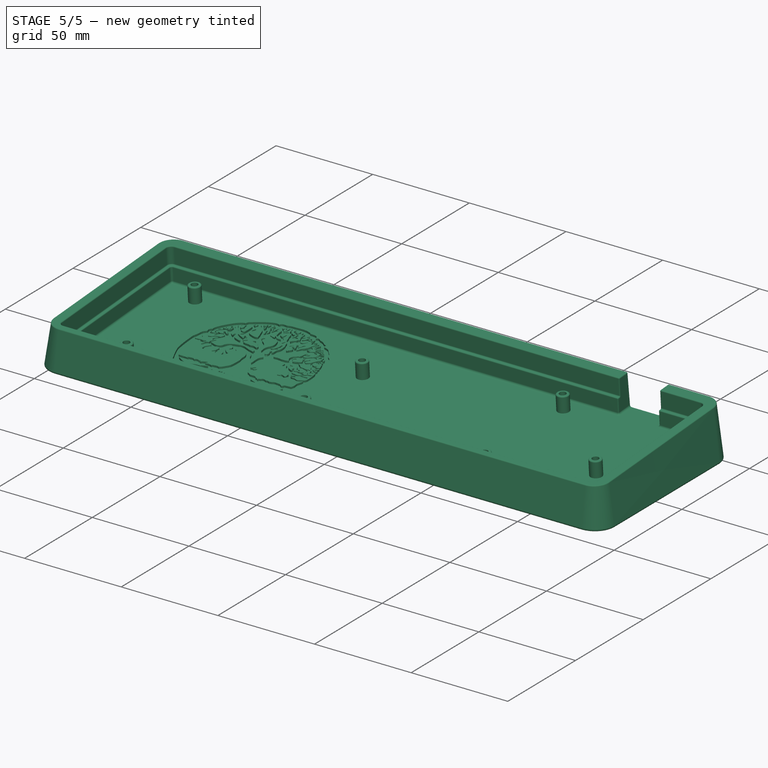
[diagram: stage 5 of 5 — iso view after this stage's code; geometry added in this stage tinted green]
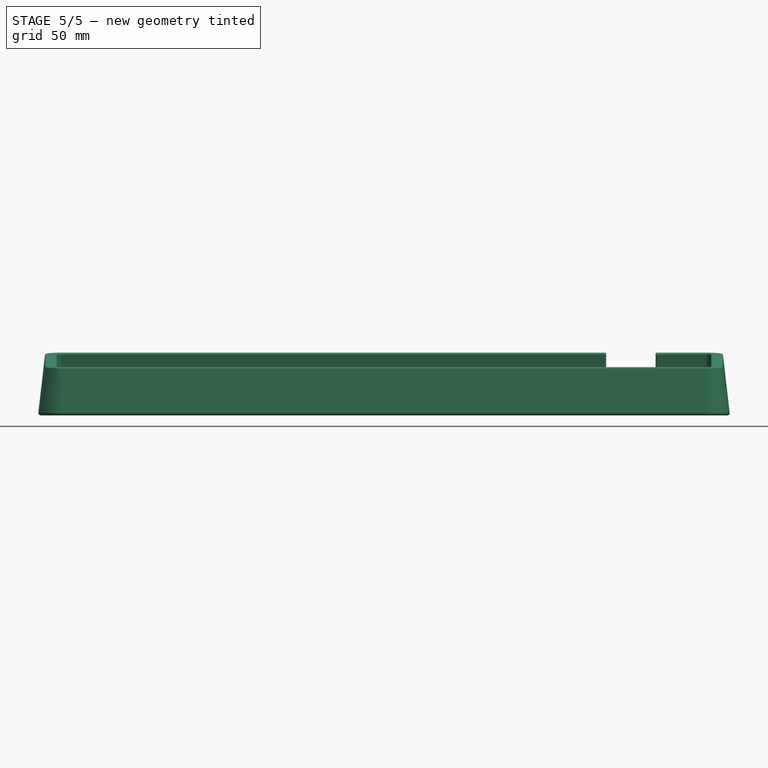
[diagram: stage 5 of 5 — front view after this stage's code; geometry added in this stage tinted green]
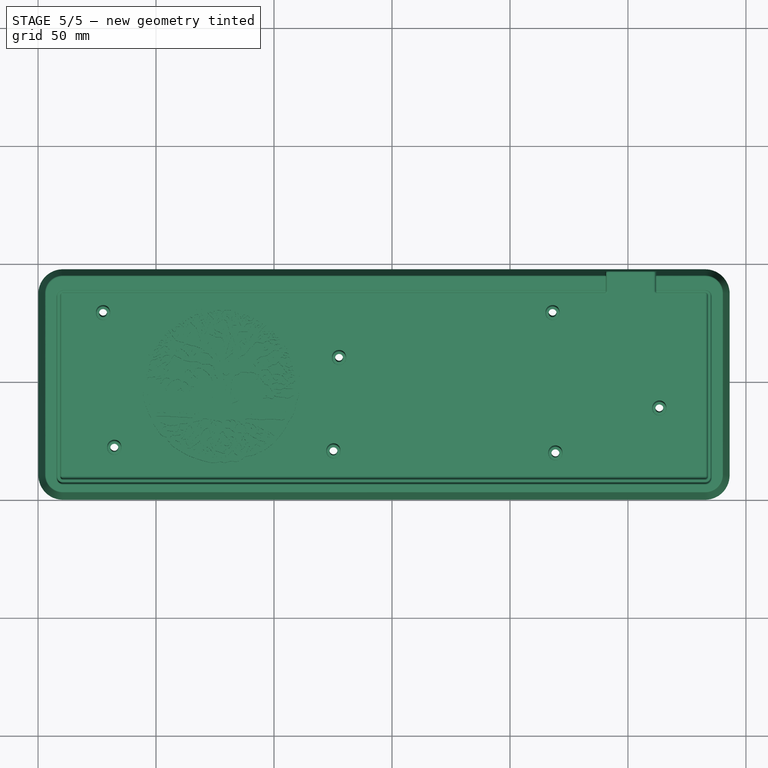
[diagram: stage 5 of 5 — top view after this stage's code; geometry added in this stage tinted green]
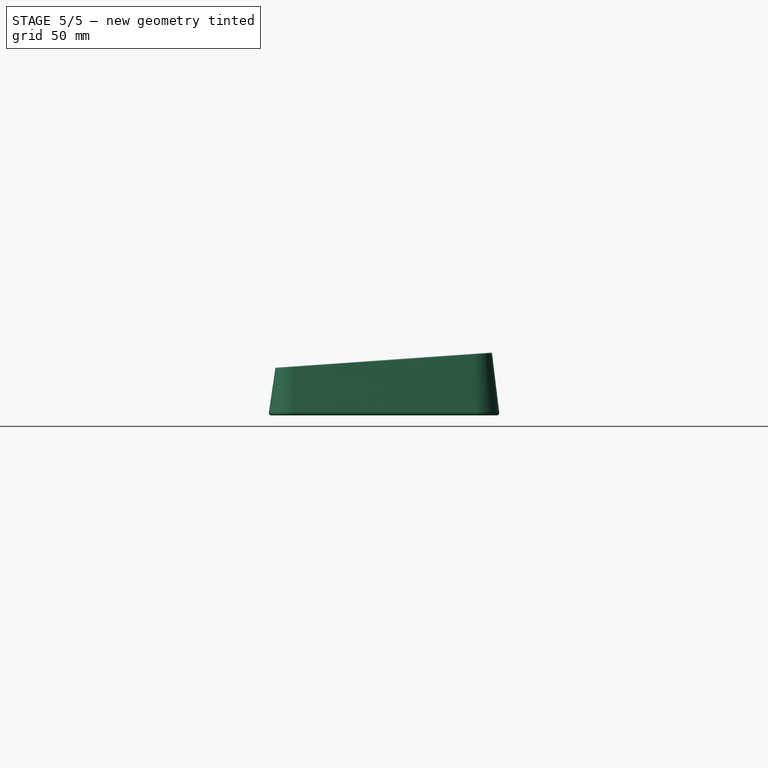
[diagram: stage 5 of 5 — right view after this stage's code; geometry added in this stage tinted green]
FEATURE [Sketcher::SketchObject] Sketch004
  ExternalGeometry = -> [Pad]
  FullyConstrained = true
  MapMode = 5
  Placement = pos=(-1e-16,-0.763923,10.9246) rot=(1,0,0;0.069813rad)
  Support = -> [Pad]
  sketch-geometry (7):
    g0: Circle CenterX=218.05 CenterY=79.9375 CenterZ=0 NormalX=0 NormalY=0 NormalZ=1 AngleXU=0 Radius=1.5
    g1: Circle CenterX=263.294 CenterY=39.4563 CenterZ=0 NormalX=0 NormalY=0 NormalZ=1 AngleXU=0 Radius=1.5
    g2: Circle CenterX=219.241 CenterY=20.4063 CenterZ=0 NormalX=0 NormalY=0 NormalZ=1 AngleXU=0 Radius=1.5
    g3: Circle CenterX=127.562 CenterY=60.8875 CenterZ=0 NormalX=0 NormalY=0 NormalZ=1 AngleXU=0 Radius=1.5
    g4: Circle CenterX=125.181 CenterY=21.2875 CenterZ=0 NormalX=0 NormalY=0 NormalZ=1 AngleXU=0 Radius=1.5
    g5: Circle CenterX=32.3125 CenterY=22.7875 CenterZ=0 NormalX=0 NormalY=0 NormalZ=1 AngleXU=0 Radius=1.5
    g6: Circle CenterX=27.55 CenterY=79.9375 CenterZ=0 NormalX=0 NormalY=0 NormalZ=1 AngleXU=0 Radius=1.5
  constraints (14):
    c: Coincident(g0,g-7)
    c: Coincident(g1,g-8)
    c: Coincident(g2,g-9)
    c: Coincident(g3,g-6)
    c: Coincident(g4,g-5)
    c: Coincident(g5,g-4)
    c: Coincident(g6,g-3)
    c: Equal(g6,g5)
    c: Equal(g5,g3)
    c: Equal(g3,g4)
    c: Equal(g4,g0)
    c: Equal(g0,g2)
    c: Equal(g2,g1)
    c: Diameter(g6) = 3
FEATURE [PartDesign::Hole] Hole
  BaseFeature = -> Pad
  CustomThreadClearance = 0
  Depth = 25
  DepthType = 0
  Diameter = 3.4
  DrillForDepth = false
  DrillPoint = 1
  DrillPointAngle = 118
  HoleCutCountersinkAngle = 90
  HoleCutCustomValues = false
  HoleCutDepth = 0
  HoleCutDiameter = 6.1
  HoleCutType = 0
  ModelThread = false
  Profile = -> Sketch004
  Tapered = false
  TaperedAngle = 90
  ThreadClass = 0
  ThreadDepth = 25
  ThreadDepthType = 0
  ThreadDirection = 0
  ThreadFit = 0
  ThreadSize = 9
  ThreadType = 1
  Threaded = false
  UseCustomThreadClearance = false
FEATURE [PartDesign::Chamfer] Chamfer
  Angle = 45
  Base = -> Hole [Edge11,Edge10,Edge13,Edge15,Edge12,Edge9,Edge14]
  BaseFeature = -> Hole
  ChamferType = 0
  FlipDirection = false
  Size = 4
  Size2 = 1
  SupportTransform = false
  UseAllEdges = false
FEATURE [Sketcher::SketchObject] Sketch005
  ExternalGeometry = -> [Chamfer]
  FullyConstrained = true
  MapMode = 5
  Placement = pos=(0,-1.39173,19.9027) rot=(1,0,0;0.069813rad)
  Support = -> [Chamfer]
  sketch-geometry (5):
    g0: GeomPoint X=261.725 Y=88.4625 Z=0
    g1: LineSegment StartX=261.725 StartY=88.4625 StartZ=0 EndX=240.725 EndY=88.4625 EndZ=0
    g2: LineSegment StartX=240.725 StartY=88.4625 StartZ=0 EndX=240.725 EndY=97.7239 EndZ=0
    g3: LineSegment StartX=240.725 StartY=97.7239 StartZ=0 EndX=261.725 EndY=97.7239 EndZ=0
    g4: LineSegment StartX=261.725 StartY=97.7239 StartZ=0 EndX=261.725 EndY=88.4625 EndZ=0
  constraints (13):
    c: PointOnObject(g0,g-4)
    c: DistanceX(g0,g-4) = 21
    c: Coincident(g1,g2)
    c: Coincident(g2,g3)
    c: Coincident(g3,g4)
    c: Coincident(g4,g1)
    c: Horizontal(g1)
    c: Horizontal(g3)
    c: Vertical(g2)
    c: Vertical(g4)
    c: Coincident(g1,g0)
    c: PointOnObject(g2,g-3)
    c: DistanceX(g3,g3) = 21
FEATURE [PartDesign::Pocket] Pocket001
  BaseFeature = -> Chamfer
  Direction = (0,0.0697565,-0.997564)
  Length = 0
  Length2 = 5
  Profile = -> Sketch005
  ReferenceAxis = -> Sketch005 [N_Axis]
  Type = 3
  UpToFace = -> Chamfer [Face48]
FEATURE [PartDesign::Fillet] Fillet
  Base = -> Pocket001 [Face39,Edge66,Edge20,Edge69,Edge22,Edge62,Edge52,Face18,Edge64,Edge71,Edge21,Edge84,Edge132,Edge131,Edge130,Edge129,Edge133,Edge134]
  BaseFeature = -> Pocket001
  Radius = 0.5
  SupportTransform = false
  UseAllEdges = false
FEATURE [PartDesign::Fillet] Fillet001
  Base = -> Fillet [Edge147,Edge21]
  BaseFeature = -> Fillet
  Radius = 1
  SupportTransform = false
  UseAllEdges = false
FEATURE [Sketcher::SketchObject] Sketch008
  AttachmentOffset = pos=(0,3,0) rot=(0,0,1;0rad)
  FullyConstrained = false
  MapMode = 5
  Placement = pos=(0,2.78682,3.15336) rot=(1,0,0;0.069813rad)
  Support = -> [Fillet001]
  sketch-geometry (45):
    g0: BSplineCurve PolesCount=157 KnotsCount=53 Degree=3 IsPeriodic=0
    g1: BSplineCurve PolesCount=142 KnotsCount=48 Degree=3 IsPeriodic=0
    g2: BSplineCurve PolesCount=145 KnotsCount=49 Degree=3 IsPeriodic=0
    g3: BSplineCurve PolesCount=148 KnotsCount=50 Degree=3 IsPeriodic=0
    g4: BSplineCurve PolesCount=193 KnotsCount=65 Degree=3 IsPeriodic=0
    g5: BSplineCurve PolesCount=157 KnotsCount=53 Degree=3 IsPeriodic=0
    g6: BSplineCurve PolesCount=13 KnotsCount=5 Degree=3 IsPeriodic=0
    g7: BSplineCurve PolesCount=169 KnotsCount=57 Degree=3 IsPeriodic=0
    g8: BSplineCurve PolesCount=61 KnotsCount=21 Degree=3 IsPeriodic=0
    g9: BSplineCurve PolesCount=22 KnotsCount=8 Degree=3 IsPeriodic=0
    g10: BSplineCurve PolesCount=124 KnotsCount=42 Degree=3 IsPeriodic=0
    g11: BSplineCurve PolesCount=52 KnotsCount=18 Degree=3 IsPeriodic=0
    g12: BSplineCurve PolesCount=235 KnotsCount=79 Degree=3 IsPeriodic=0
    g13: BSplineCurve PolesCount=64 KnotsCount=22 Degree=3 IsPeriodic=0
    g14: BSplineCurve PolesCount=25 KnotsCount=9 Degree=3 IsPeriodic=0
    g15: BSplineCurve PolesCount=40 KnotsCount=14 Degree=3 IsPeriodic=0
    g16: BSplineCurve PolesCount=151 KnotsCount=51 Degree=3 IsPeriodic=0
    g17: BSplineCurve PolesCount=91 KnotsCount=31 Degree=3 IsPeriodic=0
    g18: BSplineCurve PolesCount=76 KnotsCount=26 Degree=3 IsPeriodic=0
    g19: BSplineCurve PolesCount=28 KnotsCount=10 Degree=3 IsPeriodic=0
    g20: BSplineCurve PolesCount=70 KnotsCount=24 Degree=3 IsPeriodic=0
    g21: BSplineCurve PolesCount=19 KnotsCount=7 Degree=3 IsPeriodic=0
    g22: BSplineCurve PolesCount=25 KnotsCount=9 Degree=3 IsPeriodic=0
    g23: BSplineCurve PolesCount=55 KnotsCount=19 Degree=3 IsPeriodic=0
    g24: BSplineCurve PolesCount=25 KnotsCount=9 Degree=3 IsPeriodic=0
    g25: BSplineCurve PolesCount=10 KnotsCount=4 Degree=3 IsPeriodic=0
    g26: BSplineCurve PolesCount=121 KnotsCount=41 Degree=3 IsPeriodic=0
    g27: BSplineCurve PolesCount=34 KnotsCount=12 Degree=3 IsPeriodic=0
    g28: BSplineCurve PolesCount=37 KnotsCount=13 Degree=3 IsPeriodic=0
    g29: BSplineCurve PolesCount=43 KnotsCount=15 Degree=3 IsPeriodic=0
    g30: BSplineCurve PolesCount=46 KnotsCount=16 Degree=3 IsPeriodic=0
    g31: BSplineCurve PolesCount=64 KnotsCount=22 Degree=3 IsPeriodic=0
    g32: BSplineCurve PolesCount=25 KnotsCount=9 Degree=3 IsPeriodic=0
    g33: BSplineCurve PolesCount=61 KnotsCount=21 Degree=3 IsPeriodic=0
    g34: BSplineCurve PolesCount=28 KnotsCount=10 Degree=3 IsPeriodic=0
    g35: BSplineCurve PolesCount=52 KnotsCount=18 Degree=3 IsPeriodic=0
    g36: BSplineCurve PolesCount=10 KnotsCount=4 Degree=3 IsPeriodic=0
    g37: BSplineCurve PolesCount=37 KnotsCount=13 Degree=3 IsPeriodic=0
    g38: BSplineCurve PolesCount=31 KnotsCount=11 Degree=3 IsPeriodic=0
    g39: BSplineCurve PolesCount=40 KnotsCount=14 Degree=3 IsPeriodic=0
    g40: BSplineCurve PolesCount=28 KnotsCount=10 Degree=3 IsPeriodic=0
    g41: BSplineCurve PolesCount=10 KnotsCount=4 Degree=3 IsPeriodic=0
    g42: BSplineCurve PolesCount=7 KnotsCount=3 Degree=3 IsPeriodic=0
    g43: BSplineCurve PolesCount=13 KnotsCount=5 Degree=3 IsPeriodic=0
    g44: BSplineCurve PolesCount=7 KnotsCount=3 Degree=3 IsPeriodic=0
FEATURE [PartDesign::Pocket] Pocket002
  BaseFeature = -> Fillet001
  Direction = (0,0.0697565,-0.997564)
  Length = 1
  Length2 = 5
  Profile = -> Sketch008
  ReferenceAxis = -> Sketch008 [N_Axis]
  Type = 0
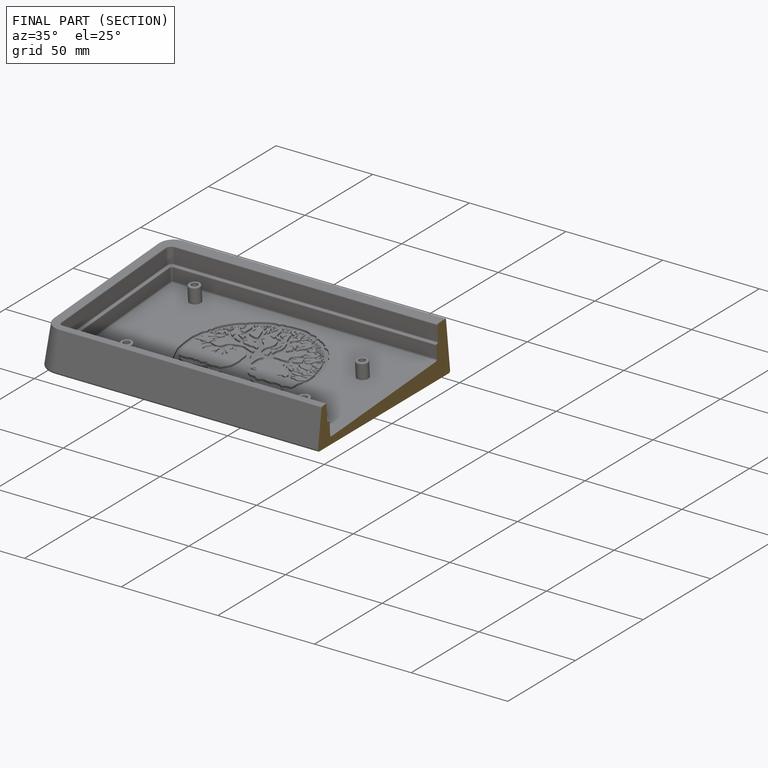
[diagram: finished part — half-section view (interior)]
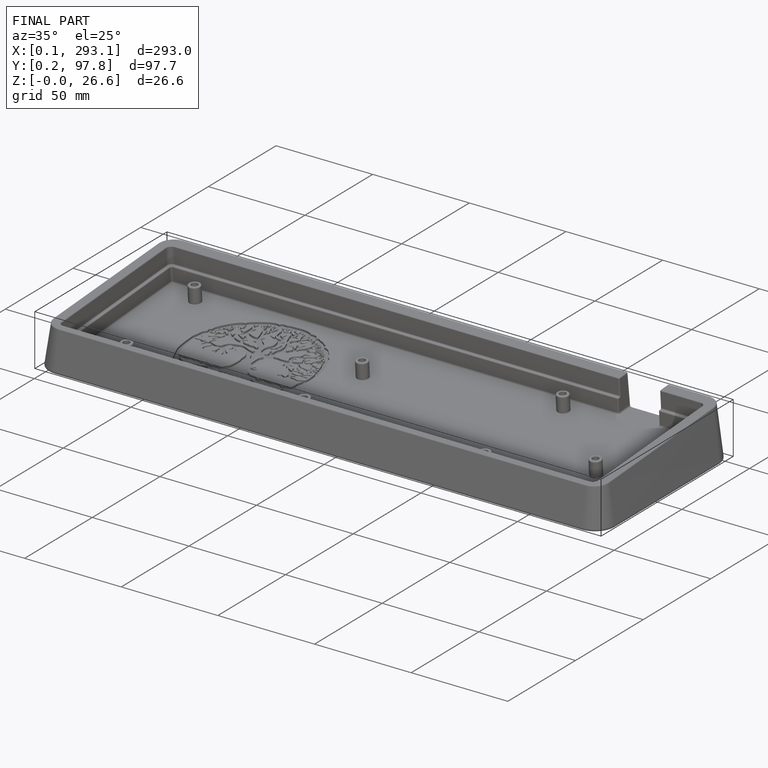
[diagram: finished part — iso view with bounding-box wireframe]
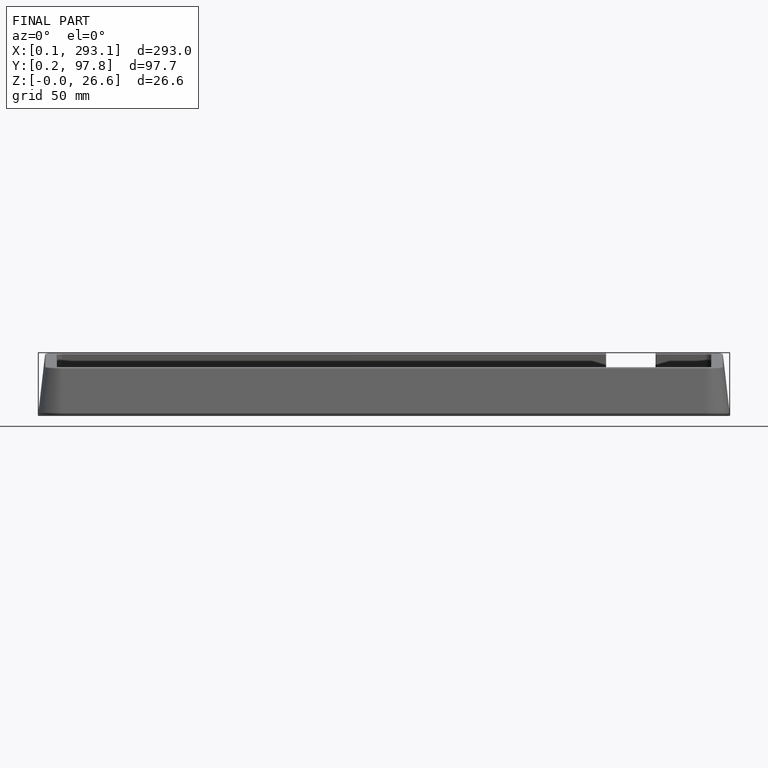
[diagram: finished part — front view with bounding-box wireframe]
